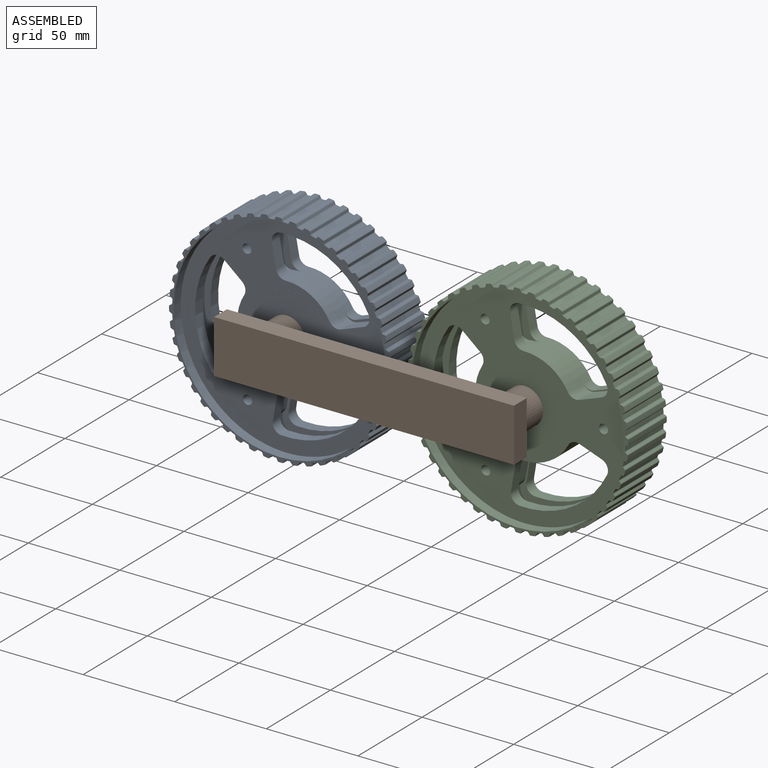
[diagram: assembled view]
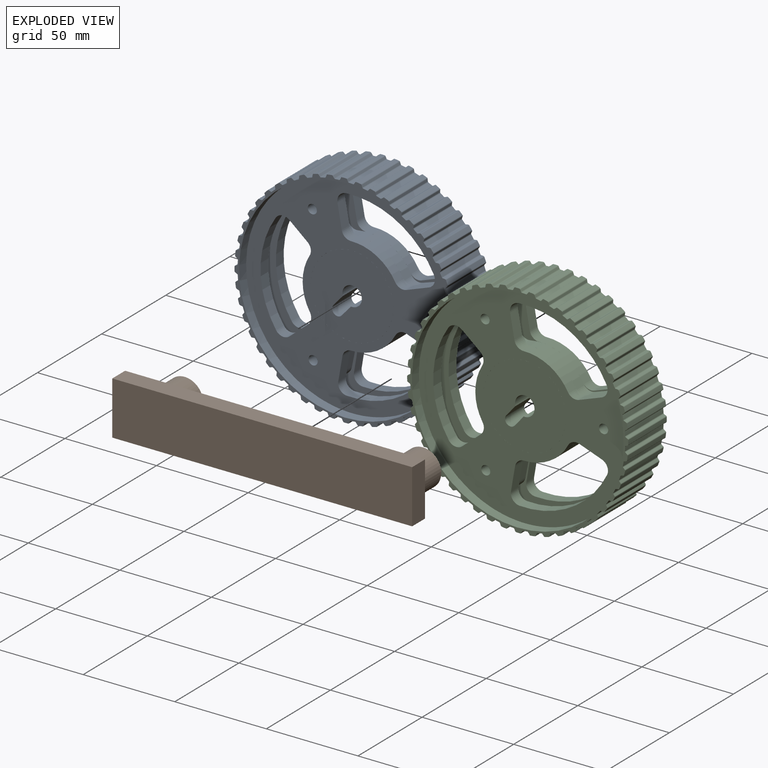
[diagram: exploded view]
GUIDED TOUR — MATED ASSEMBLY WITH SUBASSEMBLIES (Onshape document 6eb05f2303a7bf940cdb8cd1, AutoMate assembly 6eb05f2303a7bf940cdb8cd1_364548f8d74a8f267cea9362_1604241d3b773ca382b3986f_default)

This assembly has 9 component occurrences arranged in 3 top-level units: 1 individual components plus 2 subassemblies (S0, S1). The tour has two levels: first the top level, where each subassembly is treated as one rigid unit; then each subassembly is toured internally in its own section (nesting deeper than one subassembly level is flattened into its subassembly's section).

Components are labeled P0..P8 across the whole record; subassembly units are labeled S0..S1. A mate is a constraint between two units; its type names the relative motion it leaves free:
  FASTENED — locks the two components together rigidly (no relative motion),
  REVOLUTE — leaves rotation about the listed axis free (a hinge).
Axis/direction vectors are unit vectors and 'through' points are millimeter coordinates, both in the assembly's world frame.

TOP-LEVEL MATES (between units; each subassembly's internal mates are listed in its own section)
  1. REVOLUTE "Drehen 1": S0 <-> P1, axis (0.000, -1.000, 0.000) through (-51.69, 32.48, -22.25) mm
  2. REVOLUTE "Drehen 2": P1 <-> S1, axis (0.000, 1.000, 0.000) through (78.31, 32.48, -22.25) mm

TOP-LEVEL ASSEMBLY ORDER
  1. S1 — the base component [order verified]
  2. S0 [order verified]
  3. P1 [order verified]
Order-tag legend:
  [order verified] — this step's position reverses a verified removal order: the component was checked to insert without passing through the ones already placed.

Of the 9 component occurrences, 6 carry the full construction recipe — the FeatureScript program that regenerates the part's solid from scratch; the rest are supplied as boundary geometry only. Each toured unit is shown spotlighted twice — assembled, then exploded with a leader line back to its socket (green = recipe-attached component, orange = geometry-only, blue = subassembly unit; the rest desaturated gray).
NOTE — this tour is split across 2 documents so each fits a 32k-token context. This is document 1: the component sections continue in the remaining 1 document, each repeating the header above.
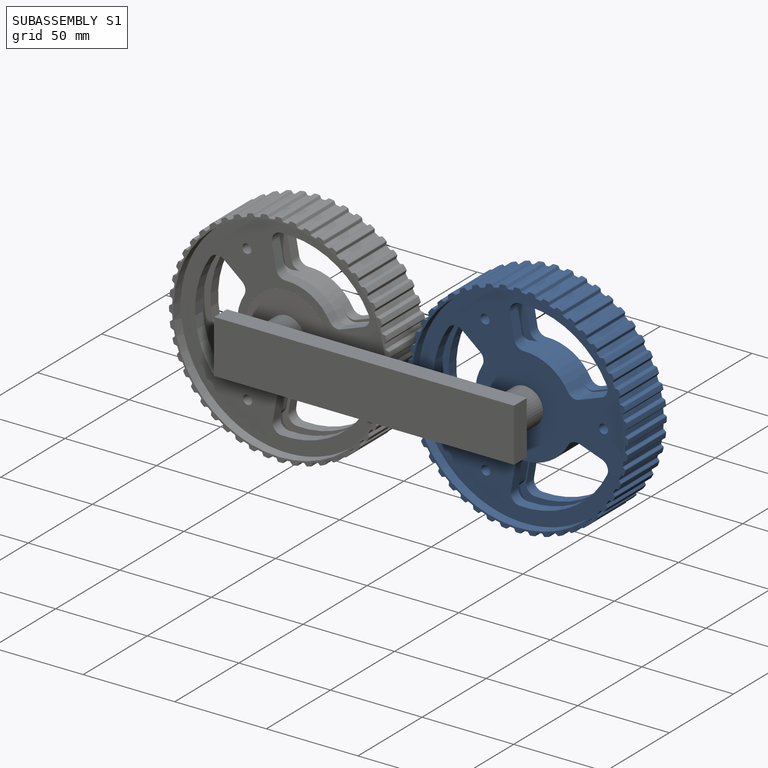
[diagram: subassembly S1 — assembled]
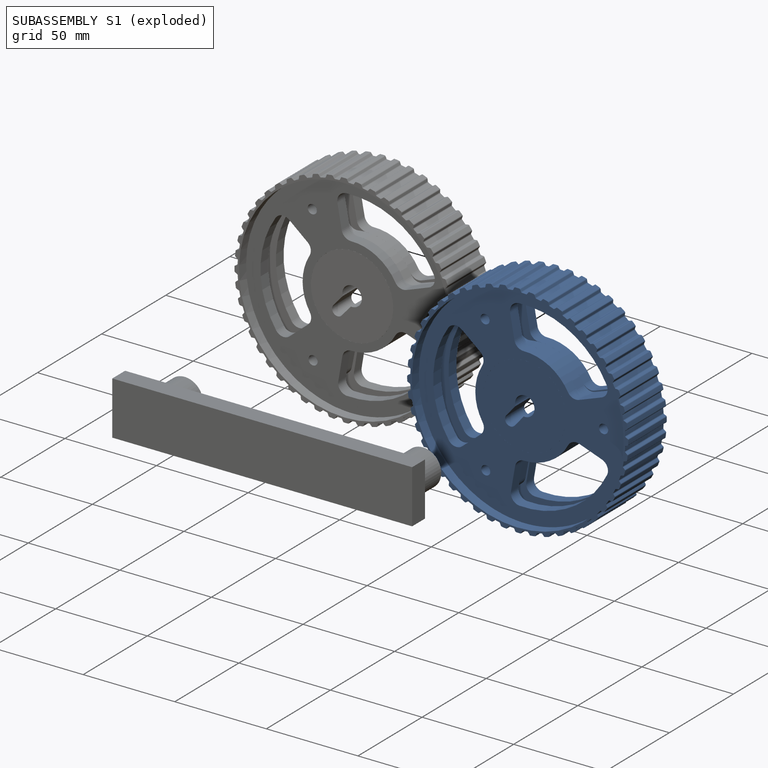
[diagram: subassembly S1 — exploded]
SUBASSEMBLY S1 — 4 components (P2, P3, P4, P5), of which 3 recipe-attached; toured below.
Held by: REVOLUTE mate "Drehen 2" to P1.
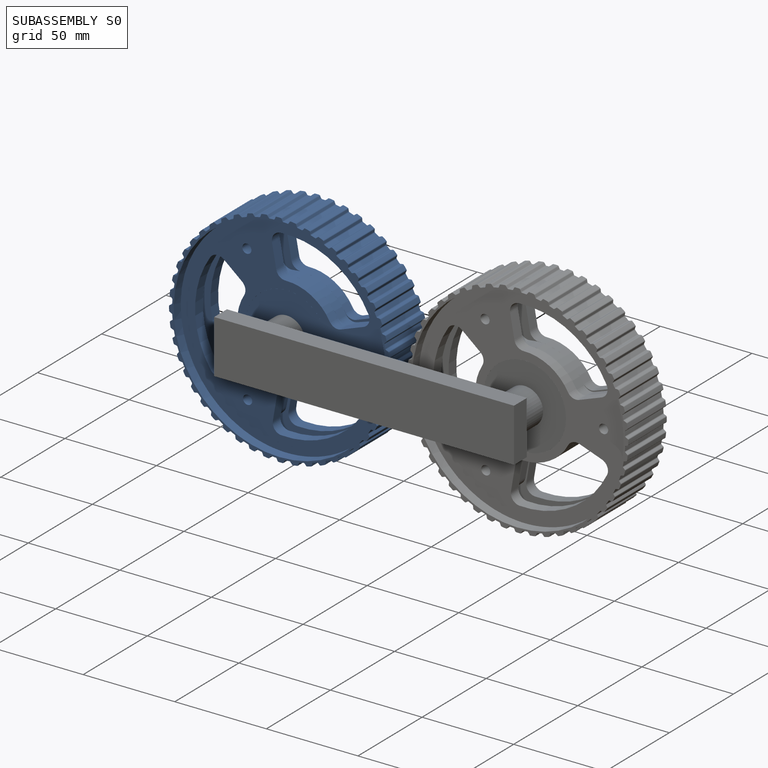
[diagram: subassembly S0 — assembled]
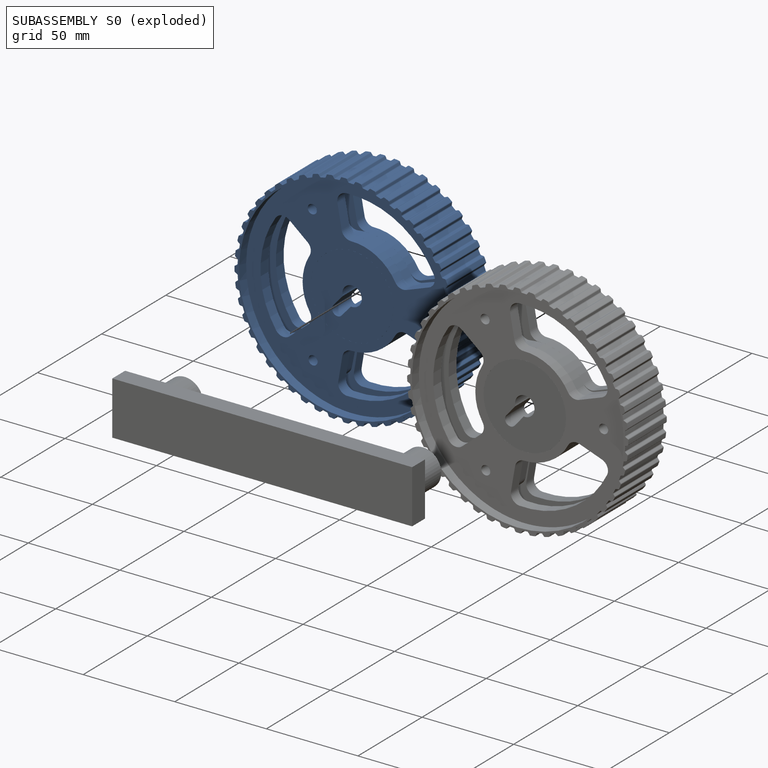
[diagram: subassembly S0 — exploded]
SUBASSEMBLY S0 — 4 components (P0, P6, P7, P8), of which 3 recipe-attached; toured below.
Held by: REVOLUTE mate "Drehen 1" to P1.
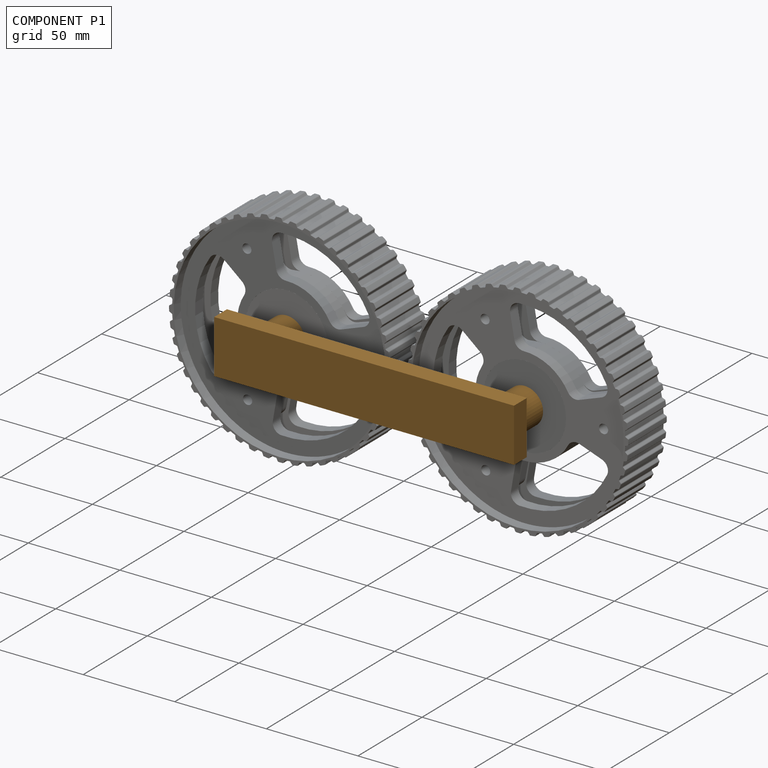
[diagram: component P1 — assembled]
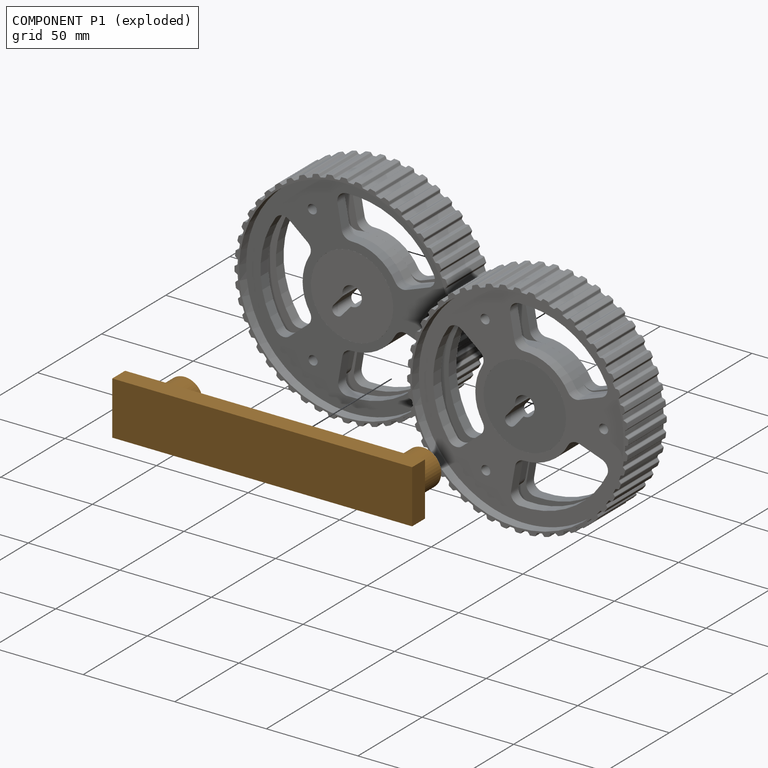
[diagram: component P1 — exploded]
COMPONENT P1 — geometry summary (no construction recipe available for this part):
  bounding box: 163.7 x 30.0 x 29.2 mm
  B-rep topology: 1 solid, 10 faces, 36 edges
  volume: 60337 mm^3 (42% of its bounding box)
Held by: REVOLUTE mate "Drehen 1" to P0; REVOLUTE mate "Drehen 2" to P2.
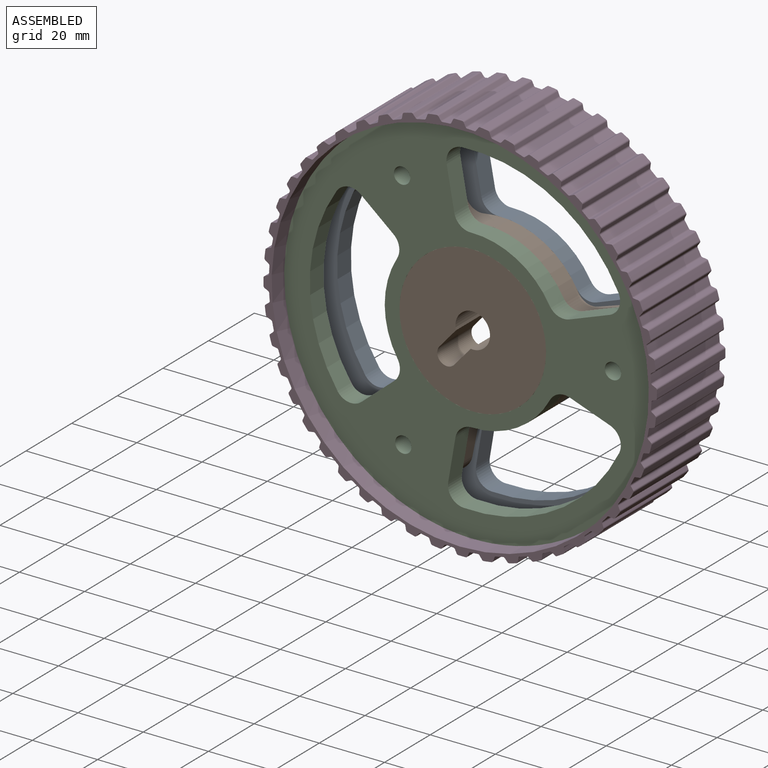
[diagram: subassembly S0 — assembled view]
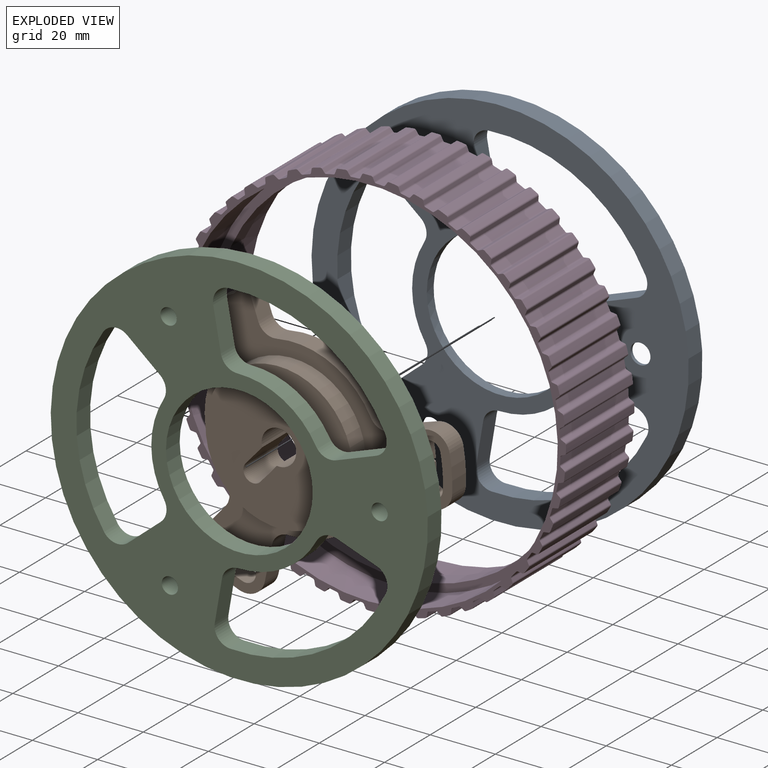
[diagram: subassembly S0 — exploded view]
SUBASSEMBLY S0 TOUR — 4 components, shown here in isolation at its own camera.

INTERNAL MATES
  1. FASTENED "Fest 1": P8 <-> P0, direction (0.000, 1.000, 0.000) through (-51.69, 44.48, -22.25) mm
  2. REVOLUTE "Drehen 2": P8 <-> P7, axis (0.000, -1.000, 0.000) through (-51.69, 38.48, -22.25) mm
  3. REVOLUTE "Drehen 1": P6 <-> P0, axis (0.000, 1.000, 0.000) through (-51.69, 44.48, -22.25) mm
  4. FASTENED "Fest 1": P8 <-> P0, direction (0.000, 1.000, 0.000) through (-51.69, 44.48, -22.25) mm
  5. REVOLUTE "Drehen 2": P8 <-> P7, axis (0.000, -1.000, 0.000) through (-51.69, 38.48, -22.25) mm
  6. REVOLUTE "Drehen 1": P6 <-> P0, axis (0.000, 1.000, 0.000) through (-51.69, 44.48, -22.25) mm

ASSEMBLY ORDER (within the subassembly)
  1. P0 — the base component [order heuristic]
  2. P6 [order heuristic]
  3. P8 [order heuristic]
  4. P7 [order heuristic]
Order-tag legend:
  [order heuristic] — this assembly is geometrically interlocked (no collision-free removal order exists), so components are listed in mate-graph order; insertion feasibility is not verified.
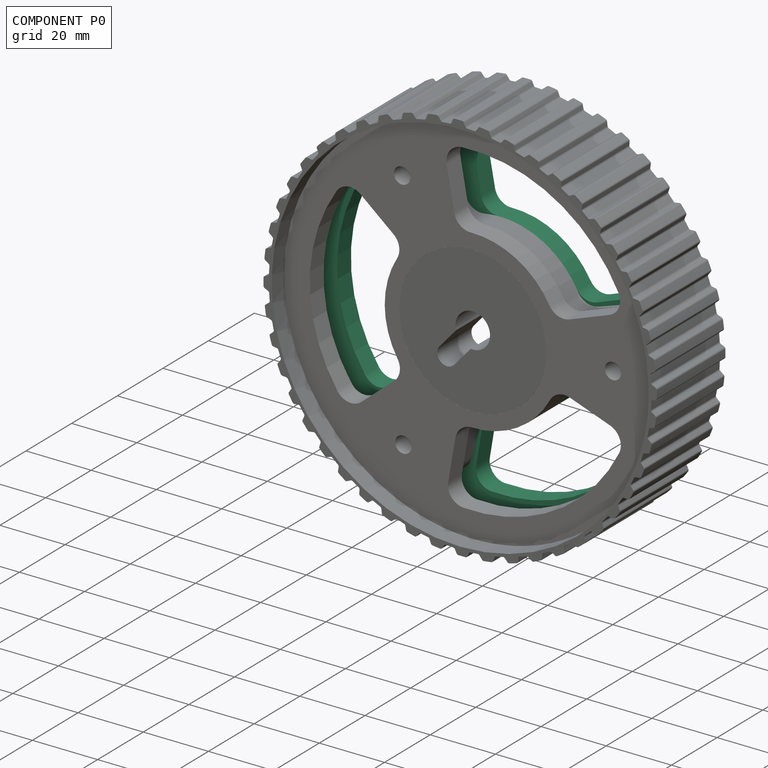
[diagram: component P0 — assembled]
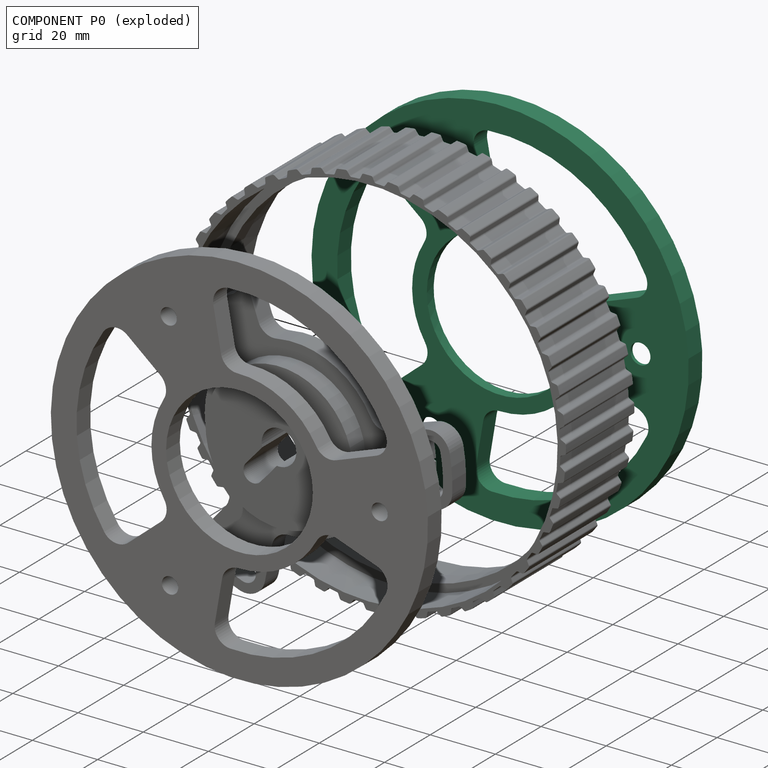
[diagram: component P0 — exploded]
COMPONENT P0 — recipe-attached (CADFS 00558431, mesh-verified: the recipe's output STEP matches this component's geometry to below the mesh-comparison resolution (tessellation chordal tolerance ~0.245 mm)).
Held by: FASTENED mate "Fest 1" to P8; REVOLUTE mate "Drehen 1" to P6; FASTENED mate "Fest 1" to P8; REVOLUTE mate "Drehen 1" to P6.
Construction recipe (FeatureScript — the CAD program that rebuilds this solid; sketch coordinates are in the units given by the * unit suffixes, e.g. mm):

FeatureScript 2543;
import(path : "onshape/std/geometry.fs", version : "2543.0");
import(path : "onshape/std/common.fs", version : "2543.0");
const mm = millimeter;
const VERTEX = EntityType.VERTEX;
const EDGE = EntityType.EDGE;
const FACE = EntityType.FACE;
const BODY = EntityType.BODY;
function v(x, y){return vector(x, y);}
function OD(order){return orderDisambiguation(order);}
function OSD(set){return originalSetDisambiguation(set);}
function TD(topology){return topologyDisambiguation(topology);}
function TDD(query){return trueDependencyDisambiguation(query);}
function sQuery(a, b, c) {return sketchEntityQuery(a, b, c);}

annotation { "Feature Type Name" : "Feature", "Feature Type Description" : "" }
export const myFeature = defineFeature(function(context is Context, id is Id, definition is map)
    precondition{}
    {
        {
            var Q0;
            Q0=qCreatedBy(makeId("Front.planeOp"),FACE);
            var sketch = newSketch(context, id + "F0", { "sketchPlane" : qUnion([Q0])});
            skCircle(sketch, "E0", {"center": v(0, 0) * mm, "radius": 57.85 * mm});
            skCircle(sketch, "E1", {"center": v(0, 0) * mm, "radius": 22.5 * mm});
            skArc(sketch, "E2", {"start": v(-25.2, 9.68) * mm, "mid": v(-27, 0) * mm, "end": v(-25.2, -9.68) * mm});
            skArc(sketch, "E3", {"start": v(-45.81, 20.03) * mm, "mid": v(-50, 0) * mm, "end": v(-45.81, -20.03) * mm});
            skPoint(sketch, "E4.visualSharp", {"position": v(-23.38, 13.5) * mm});
            skPoint(sketch, "E5.visualSharp", {"position": v(-43.3, 25) * mm});
            skPoint(sketch, "E6.visualSharp", {"position": v(-43.3, -25) * mm});
            skPoint(sketch, "E7.visualSharp", {"position": v(-23.38, -13.5) * mm});
            skPoint(sketch, "E8.MirrorP", {"position": v(23.38, -13.5) * mm});
            skPoint(sketch, "E9.MirrorP", {"position": v(0, -50) * mm});
            skPoint(sketch, "E10.MirrorP", {"position": v(0, -27) * mm});
            skArc(sketch, "E11.MirrorCS", {"start": v(20.99, -16.99) * mm, "mid": v(13.5, -23.38) * mm, "end": v(4.22, -26.67) * mm});
            skArc(sketch, "E12.MirrorCS", {"start": v(40.26, -29.66) * mm, "mid": v(25, -43.3) * mm, "end": v(5.56, -49.7) * mm});
            skArc(sketch, "E13.MirrorCS", {"start": v(4.22, 26.67) * mm, "mid": v(13.5, 23.38) * mm, "end": v(20.99, 16.99) * mm});
            skArc(sketch, "E14.MirrorCS", {"start": v(5.56, 49.7) * mm, "mid": v(25, 43.3) * mm, "end": v(40.26, 29.66) * mm});
            skPoint(sketch, "E15.MirrorP", {"position": v(0, 50) * mm});
            skPoint(sketch, "E16.MirrorP", {"position": v(43.3, 25) * mm});
            skCircle(sketch, "E17", {"center": v(43, 0) * mm, "radius": 3.1 * mm});
            skCircle(sketch, "E18.MirrorC", {"center": v(-21.5, 37.24) * mm, "radius": 3.1 * mm});
            skCircle(sketch, "E19.MirrorC", {"center": v(-21.5, -37.24) * mm, "radius": 3.1 * mm});
            skArc(sketch, "E20", {"start": v(20.99, 16.99) * mm, "mid": v(11.41, 24.47) * mm, "end": v(-0.48, 27) * mm});
            skArc(sketch, "E21", {"start": v(-45.81, 20.03) * mm, "mid": v(-49.92, -2.78) * mm, "end": v(-43.3, -25) * mm});
            skArc(sketch, "E22.trimOffspring", {"start": v(0, -50) * mm, "mid": v(22.55, -44.63) * mm, "end": v(40.26, -29.66) * mm});
            skArc(sketch, "E23.trimOffspring", {"start": v(40.26, 29.66) * mm, "mid": v(21.13, 45.32) * mm, "end": v(-3.16, 49.9) * mm});
            skLineSegment(sketch, "E24.trimOffspring", {"start": v(-10.05, 56.97) * mm, "end": v(-12, 68.06) * mm});
            skLineSegment(sketch, "E25.trimOffspring", {"start": v(-5.49, 31.13) * mm, "end": v(-7.77, 44.04) * mm});
            skLineSegment(sketch, "E26", {"start": v(-24.21, 20.32) * mm, "end": v(-34.26, 28.75) * mm});
            skArc(sketch, "E27", {"start": v(0, -27) * mm, "mid": v(13.5, -23.38) * mm, "end": v(23.38, -13.5) * mm});
            skArc(sketch, "E28.trimOffspring", {"start": v(40.26, 29.66) * mm, "mid": v(18.58, 46.42) * mm, "end": v(-8.68, 49.24) * mm});
            skArc(sketch, "E29.trimOffspring", {"start": v(-23.14, 13.91) * mm, "mid": v(-27, 0.24) * mm, "end": v(-23.38, -13.5) * mm});
            skArc(sketch, "E30.trimOffspring", {"start": v(-41.64, 27.68) * mm, "mid": v(-49.98, 1.58) * mm, "end": v(-43.3, -25) * mm});
            skArc(sketch, "E31.MirrorCS", {"start": v(-41.64, -27.68) * mm, "mid": v(-49.98, -1.58) * mm, "end": v(-43.3, 25) * mm});
            skArc(sketch, "E32.MirrorCS", {"start": v(-23.14, -13.91) * mm, "mid": v(-27, -0.24) * mm, "end": v(-23.38, 13.5) * mm});
            skLineSegment(sketch, "E33.MirrorCS", {"start": v(-24.21, -20.32) * mm, "end": v(-34.26, -28.75) * mm});
            skArc(sketch, "E34.MirrorCS", {"start": v(5.56, 49.7) * mm, "mid": v(28.68, 40.96) * mm, "end": v(44.8, 22.22) * mm});
            skLineSegment(sketch, "E35.MirrorCS", {"start": v(29.7, 10.81) * mm, "end": v(42.02, 15.3) * mm});
            skArc(sketch, "E36.MirrorCS", {"start": v(20.99, 16.99) * mm, "mid": v(13.5, 23.38) * mm, "end": v(4.22, 26.67) * mm});
            skArc(sketch, "E37.MirrorCS", {"start": v(4.22, 26.67) * mm, "mid": v(15.49, 22.12) * mm, "end": v(23.62, 13.09) * mm});
            skLineSegment(sketch, "E38", {"start": v(0, 0) * mm, "end": v(119.14, 0) * mm});
            skLineSegment(sketch, "E39.MirrorCS", {"start": v(29.7, -10.81) * mm, "end": v(42.02, -15.3) * mm});
            skArc(sketch, "E40.MirrorCS", {"start": v(4.22, -26.67) * mm, "mid": v(15.49, -22.12) * mm, "end": v(23.62, -13.09) * mm});
            skArc(sketch, "E41.MirrorCS", {"start": v(5.56, -49.7) * mm, "mid": v(28.68, -40.96) * mm, "end": v(44.8, -22.22) * mm});
            skLineSegment(sketch, "E42.MirrorCS", {"start": v(-5.49, -31.13) * mm, "end": v(-7.77, -44.04) * mm});
            skArc(sketch, "E43.MirrorCS", {"start": v(-3.16, -49.9) * mm, "mid": v(23.62, -44.07) * mm, "end": v(43.3, -25) * mm});
            skArc(sketch, "E44.MirrorCS", {"start": v(-0.48, -27) * mm, "mid": v(13.3, -23.5) * mm, "end": v(23.38, -13.5) * mm});
            skPoint(sketch, "E45.visualSharp", {"position": v(-38.3, -32.14) * mm});
            skArc(sketch, "E45.filletArc", {"start": v(-41.64, -27.68) * mm, "mid": v(-38.18, -29.87) * mm, "end": v(-34.26, -28.75) * mm});
            skPoint(sketch, "E46.visualSharp", {"position": v(-38.3, 32.14) * mm});
            skArc(sketch, "E46.filletArc", {"start": v(-34.26, 28.75) * mm, "mid": v(-38.18, 29.87) * mm, "end": v(-41.64, 27.68) * mm});
            skPoint(sketch, "E47.visualSharp", {"position": v(-20.68, 17.36) * mm});
            skArc(sketch, "E47.filletArc", {"start": v(-23.14, 13.91) * mm, "mid": v(-22.5, 17.31) * mm, "end": v(-24.21, 20.32) * mm});
            skPoint(sketch, "E48.visualSharp", {"position": v(-20.68, -17.36) * mm});
            skArc(sketch, "E48.filletArc", {"start": v(-24.21, -20.32) * mm, "mid": v(-22.5, -17.31) * mm, "end": v(-23.14, -13.91) * mm});
            skPoint(sketch, "E49.visualSharp", {"position": v(-4.69, -26.59) * mm});
            skArc(sketch, "E49.filletArc", {"start": v(-0.48, -27) * mm, "mid": v(-3.74, -28.14) * mm, "end": v(-5.49, -31.13) * mm});
            skPoint(sketch, "E50.visualSharp", {"position": v(-8.68, -49.24) * mm});
            skArc(sketch, "E50.filletArc", {"start": v(-7.77, -44.04) * mm, "mid": v(-6.77, -48) * mm, "end": v(-3.16, -49.9) * mm});
            skPoint(sketch, "E51.visualSharp", {"position": v(46.98, -17.1) * mm});
            skArc(sketch, "E51.filletArc", {"start": v(44.8, -22.22) * mm, "mid": v(44.96, -18.14) * mm, "end": v(42.02, -15.3) * mm});
            skPoint(sketch, "E52.visualSharp", {"position": v(25.37, -9.23) * mm});
            skArc(sketch, "E52.filletArc", {"start": v(29.7, -10.81) * mm, "mid": v(26.24, -10.83) * mm, "end": v(23.62, -13.09) * mm});
            skPoint(sketch, "E53.visualSharp", {"position": v(46.98, 17.1) * mm});
            skArc(sketch, "E53.filletArc", {"start": v(42.02, 15.3) * mm, "mid": v(44.96, 18.14) * mm, "end": v(44.8, 22.22) * mm});
            skPoint(sketch, "E54.visualSharp", {"position": v(25.37, 9.23) * mm});
            skArc(sketch, "E54.filletArc", {"start": v(23.62, 13.09) * mm, "mid": v(26.24, 10.83) * mm, "end": v(29.7, 10.81) * mm});
            skPoint(sketch, "E55.visualSharp", {"position": v(-4.69, 26.59) * mm});
            skArc(sketch, "E55.filletArc", {"start": v(-5.49, 31.13) * mm, "mid": v(-3.74, 28.14) * mm, "end": v(-0.48, 27) * mm});
            skPoint(sketch, "E56.visualSharp", {"position": v(-8.68, 49.24) * mm});
            skArc(sketch, "E56.filletArc", {"start": v(-3.16, 49.9) * mm, "mid": v(-6.77, 48) * mm, "end": v(-7.77, 44.04) * mm});
            skSolve(sketch);
        }
        {
            var Q0;
            Q0=makeQuery(id+"F0.imprint","IMPRINT",FACE,{"disambiguationData":[TD([[makeQuery(id+"F0.imprint","IMPRINT",EDGE,{"derivedFrom":sQuery(id+"F0.wireOp",EDGE,"E0")}),1.0]])]});
            extrude(context, id + "F1", {"entities" : qUnion([Q0]), "depth" : 6 * mm, "offsetDistance" : 25 * mm});
        }
        {
            var Q0;
            Q0=makeQuery(id+"F1.opExtrude","CAP_EDGE",EDGE,{"disambiguationData":[OSD([sQuery(id+"F0.wireOp",EDGE,"E1")])],"isStart":false});
            chamfer(context, id + "F2", {"entities" : qUnion([Q0]), "chamferType" : ChamferType.TWO_OFFSETS, "width1" : 3 * mm, "oppositeDirection" : false, "width2" : 3 * mm, "tangentPropagation" : true});
        }
        {
            var Q0;
            Q0=makeQuery(id+"F1.opExtrude","CAP_EDGE",EDGE,{"disambiguationData":[OSD([sQuery(id+"F0.wireOp",EDGE,"E18.MirrorC")])],"isStart":false});
            chamfer(context, id + "F3", {"entities" : qUnion([Q0]), "chamferType" : ChamferType.OFFSET_ANGLE, "width" : 5 * mm, "oppositeDirection" : false, "angle" : 45 * degree, "tangentPropagation" : true});
        }
        {
            var Q0;
            Q0=makeQuery(id+"F1.opExtrude","CAP_EDGE",EDGE,{"disambiguationData":[OSD([sQuery(id+"F0.wireOp",EDGE,"E19.MirrorC")])],"isStart":false});
            chamfer(context, id + "F4", {"entities" : qUnion([Q0]), "width" : 5 * mm, "tangentPropagation" : true});
        }
        {
            var Q0;
            Q0=makeQuery(id+"F1.opExtrude","CAP_EDGE",EDGE,{"disambiguationData":[OSD([sQuery(id+"F0.wireOp",EDGE,"E17")])],"isStart":false});
            chamfer(context, id + "F5", {"entities" : qUnion([Q0]), "chamferType" : ChamferType.OFFSET_ANGLE, "width" : 5 * mm, "oppositeDirection" : false, "angle" : 45 * degree, "tangentPropagation" : true});
        }
    });
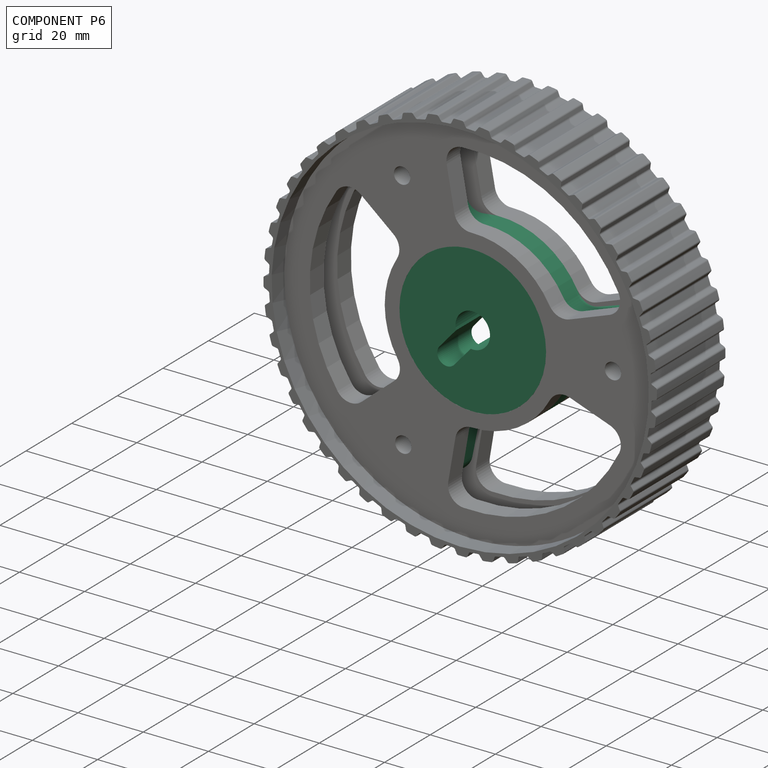
[diagram: component P6 — assembled]
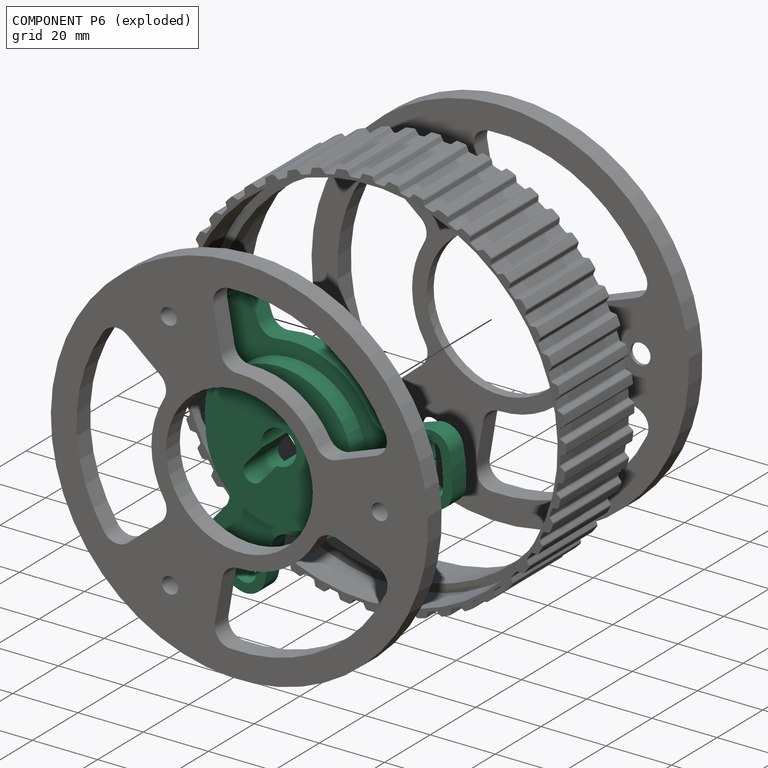
[diagram: component P6 — exploded]
COMPONENT P6 — recipe-attached (CADFS 00558435, mesh-verified: the recipe's output STEP matches this component's geometry to below the mesh-comparison resolution (tessellation chordal tolerance ~0.187 mm)).
Held by: REVOLUTE mate "Drehen 1" to P0; REVOLUTE mate "Drehen 1" to P0.
Construction recipe (FeatureScript — the CAD program that rebuilds this solid; sketch coordinates are in the units given by the * unit suffixes, e.g. mm):

FeatureScript 2543;
import(path : "onshape/std/geometry.fs", version : "2543.0");
import(path : "onshape/std/common.fs", version : "2543.0");
const mm = millimeter;
const VERTEX = EntityType.VERTEX;
const EDGE = EntityType.EDGE;
const FACE = EntityType.FACE;
const BODY = EntityType.BODY;
function v(x, y){return vector(x, y);}
function OD(order){return orderDisambiguation(order);}
function OSD(set){return originalSetDisambiguation(set);}
function TD(topology){return topologyDisambiguation(topology);}
function TDD(query){return trueDependencyDisambiguation(query);}
function sQuery(a, b, c) {return sketchEntityQuery(a, b, c);}

annotation { "Feature Type Name" : "Feature", "Feature Type Description" : "" }
export const myFeature = defineFeature(function(context is Context, id is Id, definition is map)
    precondition{}
    {
        {
            var Q0;
            Q0=qCreatedBy(makeId("Front.planeOp"),FACE);
            var sketch = newSketch(context, id + "F0", { "sketchPlane" : qUnion([Q0])});
            skArc(sketch, "E0", {"start": v(-24.5, 42.44) * mm, "mid": v(-29.15, 39.38) * mm, "end": v(-33.43, 35.82) * mm});
            skArc(sketch, "E1", {"start": v(4.4, 2.98) * mm, "mid": v(3.36, 4.11) * mm, "end": v(2.04, 4.9) * mm});
            skArc(sketch, "E2", {"start": v(-19.95, 34.55) * mm, "mid": v(-18.82, 38.79) * mm, "end": v(-23.05, 39.92) * mm});
            skLineSegment(sketch, "E3.MirrorCS", {"start": v(-3.1, -4.3) * mm, "end": v(-3.68, -4.52) * mm});
            skArc(sketch, "E4.trimOffspring", {"start": v(2.31, -4.78) * mm, "mid": v(3.47, -4.02) * mm, "end": v(4.4, -2.98) * mm});
            skLineSegment(sketch, "E5.MirrorCS", {"start": v(2.31, -4.78) * mm, "end": v(1.24, -12.01) * mm});
            skArc(sketch, "E6.MirrorCS", {"start": v(-3.6, -3.9) * mm, "mid": v(-5.3, -0.15) * mm, "end": v(-3.8, 3.7) * mm});
            skLineSegment(sketch, "E7.MirrorCS", {"start": v(-3.6, -3.9) * mm, "end": v(-4.66, -11.13) * mm});
            skArc(sketch, "E8.MirrorCS", {"start": v(-4.66, -11.13) * mm, "mid": v(-2.2, -14.84) * mm, "end": v(1.24, -12.01) * mm});
            skArc(sketch, "E9.MirrorCS", {"start": v(2.04, 4.9) * mm, "mid": v(5.3, 0.15) * mm, "end": v(2.31, -4.78) * mm});
            skArc(sketch, "E10.trimOffspring", {"start": v(-3.8, 3.7) * mm, "mid": v(-4.64, 2.6) * mm, "end": v(-5.15, 1.3) * mm});
            skArc(sketch, "E11", {"start": v(2.31, -4.78) * mm, "mid": v(0.46, 5.29) * mm, "end": v(-3.1, -4.3) * mm});
            skArc(sketch, "E12.MirrorC", {"start": v(-27.22, 29.17) * mm, "mid": v(-31.6, 29.32) * mm, "end": v(-31.45, 33.7) * mm});
            skArc(sketch, "E13", {"start": v(-19.95, 34.55) * mm, "mid": v(-23.74, 32.07) * mm, "end": v(-27.22, 29.17) * mm});
            skArc(sketch, "E14", {"start": v(-23.05, 39.92) * mm, "mid": v(-27.43, 37.05) * mm, "end": v(-31.45, 33.7) * mm});
            skArc(sketch, "E15", {"start": v(-23.39, 13.49) * mm, "mid": v(-26.83, -3.06) * mm, "end": v(-19.75, -18.41) * mm});
            skArc(sketch, "E16", {"start": v(-33.43, 35.82) * mm, "mid": v(-35.33, 31.23) * mm, "end": v(-33.1, 26.77) * mm});
            skArc(sketch, "E17", {"start": v(-27.5, 37.15) * mm, "mid": v(-27.5, 37.08) * mm, "end": v(-27.5, 37) * mm});
            skArc(sketch, "E18.trimOffspring", {"start": v(-24.07, 31.82) * mm, "mid": v(-23.71, 31.66) * mm, "end": v(-23.34, 31.53) * mm});
            skArc(sketch, "E19.trimOffspring", {"start": v(-27.36, 37.1) * mm, "mid": v(-27.43, 37.13) * mm, "end": v(-27.5, 37.15) * mm});
            skLineSegment(sketch, "E20", {"start": v(-21, 16.98) * mm, "end": v(-33.1, 26.77) * mm});
            skLineSegment(sketch, "E21", {"start": v(-33.1, 26.77) * mm, "end": v(-24.58, 19.87) * mm});
            skArc(sketch, "E22.trimOffspring", {"start": v(-23.34, 31.53) * mm, "mid": v(-23.36, 31.92) * mm, "end": v(-23.4, 32.32) * mm});
            skArc(sketch, "E23.trimOffspring", {"start": v(-15.94, 39.48) * mm, "mid": v(-19.55, 42.91) * mm, "end": v(-24.5, 42.44) * mm});
            skLineSegment(sketch, "E24.trimOffspring", {"start": v(-11.83, 29.3) * mm, "end": v(-15.94, 39.48) * mm});
            skLineSegment(sketch, "E25.trimOffspring", {"start": v(-27.43, 37.05) * mm, "end": v(-27.5, 37.15) * mm});
            skLineSegment(sketch, "E26.MirrorCS", {"start": v(-18.37, -42.28) * mm, "end": v(-18.42, -42.39) * mm});
            skArc(sketch, "E27.MirrorCS", {"start": v(-18.3, -42.31) * mm, "mid": v(-18.36, -42.35) * mm, "end": v(-18.42, -42.39) * mm});
            skArc(sketch, "E28.MirrorCS", {"start": v(-18.42, -42.39) * mm, "mid": v(-18.44, -42.32) * mm, "end": v(-18.45, -42.25) * mm});
            skArc(sketch, "E29.MirrorCS", {"start": v(-16.29, -36.42) * mm, "mid": v(-15.97, -36.19) * mm, "end": v(-15.63, -35.97) * mm});
            skArc(sketch, "E30.MirrorCS", {"start": v(-15.63, -35.97) * mm, "mid": v(-15.56, -36.36) * mm, "end": v(-15.52, -36.76) * mm});
            skArc(sketch, "E31.MirrorCS", {"start": v(-13.46, -44.1) * mm, "mid": v(-18.37, -42.28) * mm, "end": v(-23.05, -39.92) * mm});
            skArc(sketch, "E32.MirrorCS", {"start": v(-11.65, -38.16) * mm, "mid": v(-15.9, -36.6) * mm, "end": v(-19.95, -34.55) * mm});
            skArc(sketch, "E33.MirrorCS", {"start": v(-11.65, -38.16) * mm, "mid": v(-9.6, -42.03) * mm, "end": v(-13.46, -44.1) * mm});
            skArc(sketch, "E34.MirrorCS", {"start": v(-14.3, -46.86) * mm, "mid": v(-19.53, -44.94) * mm, "end": v(-24.5, -42.44) * mm});
            skArc(sketch, "E35.MirrorCS", {"start": v(-6.63, -42.06) * mm, "mid": v(-9.38, -46.21) * mm, "end": v(-14.3, -46.86) * mm});
            skLineSegment(sketch, "E36.MirrorCS", {"start": v(-26.23, -33.54) * mm, "end": v(-19.47, -24.9) * mm});
            skArc(sketch, "E37.MirrorCS", {"start": v(-24.5, -42.44) * mm, "mid": v(-27.39, -38.38) * mm, "end": v(-26.23, -33.54) * mm});
            skLineSegment(sketch, "E38.MirrorCS", {"start": v(-4.92, -31.22) * mm, "end": v(-6.63, -42.06) * mm});
            skArc(sketch, "E39.MirrorCS", {"start": v(-19.95, -34.55) * mm, "mid": v(-24.18, -35.69) * mm, "end": v(-23.05, -39.92) * mm});
            skArc(sketch, "E40.trimOffspring", {"start": v(0.01, -27) * mm, "mid": v(16.06, -21.7) * mm, "end": v(25.82, -7.9) * mm});
            skLineSegment(sketch, "E41.MirrorCS", {"start": v(45.8, 5.23) * mm, "end": v(45.92, 5.24) * mm});
            skArc(sketch, "E42.MirrorCS", {"start": v(45.8, 5.31) * mm, "mid": v(45.86, 5.28) * mm, "end": v(45.92, 5.24) * mm});
            skArc(sketch, "E43.MirrorCS", {"start": v(45.92, 5.24) * mm, "mid": v(45.87, 5.2) * mm, "end": v(45.81, 5.14) * mm});
            skArc(sketch, "E44.MirrorCS", {"start": v(38.97, 4.45) * mm, "mid": v(39.27, 4.7) * mm, "end": v(39.6, 4.94) * mm});
            skArc(sketch, "E45.MirrorCS", {"start": v(39.69, 4.1) * mm, "mid": v(39.32, 4.27) * mm, "end": v(38.97, 4.45) * mm});
            skArc(sketch, "E46.MirrorCS", {"start": v(38.87, 8.99) * mm, "mid": v(39.64, 4.52) * mm, "end": v(39.9, 0) * mm});
            skArc(sketch, "E47.MirrorCS", {"start": v(44.91, 10.39) * mm, "mid": v(45.8, 5.23) * mm, "end": v(46.1, 0) * mm});
            skArc(sketch, "E48.MirrorCS", {"start": v(49, 0) * mm, "mid": v(46.94, -4.53) * mm, "end": v(42.16, -5.94) * mm});
            skArc(sketch, "E49.MirrorCS", {"start": v(39.74, 15.29) * mm, "mid": v(44.7, 14.99) * mm, "end": v(47.74, 11.04) * mm});
            skArc(sketch, "E50.MirrorCS", {"start": v(39.9, 0) * mm, "mid": v(43, -3.1) * mm, "end": v(46.1, 0) * mm});
            skArc(sketch, "E51.MirrorCS", {"start": v(47.74, 11.04) * mm, "mid": v(48.68, 5.56) * mm, "end": v(49, 0) * mm});
            skArc(sketch, "E52.MirrorCS", {"start": v(38.87, 8.99) * mm, "mid": v(41.2, 12.7) * mm, "end": v(44.91, 10.39) * mm});
            skLineSegment(sketch, "E53.MirrorCS", {"start": v(29.5, 11.35) * mm, "end": v(39.74, 15.29) * mm});
            skLineSegment(sketch, "E54.MirrorCS", {"start": v(42.16, -5.94) * mm, "end": v(31.3, -4.41) * mm});
            skArc(sketch, "E55.trimOffspring", {"start": v(23.38, 13.51) * mm, "mid": v(10.76, 24.76) * mm, "end": v(-6.07, 26.3) * mm});
            skPoint(sketch, "E56.visualSharp", {"position": v(25.2, 9.7) * mm});
            skArc(sketch, "E56.filletArc", {"start": v(23.38, 13.51) * mm, "mid": v(26.04, 11.3) * mm, "end": v(29.5, 11.35) * mm});
            skPoint(sketch, "E57.visualSharp", {"position": v(-10.1, 25.04) * mm});
            skArc(sketch, "E57.filletArc", {"start": v(-11.83, 29.3) * mm, "mid": v(-9.5, 26.75) * mm, "end": v(-6.07, 26.3) * mm});
            skPoint(sketch, "E58.visualSharp", {"position": v(-21, 16.98) * mm});
            skArc(sketch, "E58.filletArc", {"start": v(-23.39, 13.49) * mm, "mid": v(-22.8, 16.9) * mm, "end": v(-24.58, 19.87) * mm});
            skPoint(sketch, "E59.visualSharp", {"position": v(-16.63, -21.27) * mm});
            skArc(sketch, "E59.filletArc", {"start": v(-19.47, -24.9) * mm, "mid": v(-18.41, -21.6) * mm, "end": v(-19.75, -18.41) * mm});
            skPoint(sketch, "E60.visualSharp", {"position": v(-4.2, -26.67) * mm});
            skArc(sketch, "E60.filletArc", {"start": v(0.01, -27) * mm, "mid": v(-3.23, -28.2) * mm, "end": v(-4.92, -31.22) * mm});
            skPoint(sketch, "E61.visualSharp", {"position": v(26.74, -3.77) * mm});
            skArc(sketch, "E61.filletArc", {"start": v(31.3, -4.41) * mm, "mid": v(27.91, -5.14) * mm, "end": v(25.82, -7.9) * mm});
            skSolve(sketch);
        }
        {
            var Q0;
            Q0=makeQuery(id+"F0.imprint","IMPRINT",FACE,{"disambiguationData":[TD([[makeQuery(id+"F0.imprint","IMPRINT",EDGE,{"derivedFrom":sQuery(id+"F0.wireOp",EDGE,"E0")}),1.0]])]});
            extrude(context, id + "F1", {"entities" : qUnion([Q0]), "flatOperationType" : FlatOperationType.REMOVE, "depth" : 6 * mm, "offsetDistance" : 25 * mm, "domain" : OperationDomain.MODEL});
        }
        {
            var Q0;
            Q0=makeQuery(id+"F1.opExtrude","CAP_FACE",FACE,{"disambiguationData":[OSD([sQuery(id+"F0.wireOp",EDGE,"E0"),sQuery(id+"F0.wireOp",EDGE,"E1"),sQuery(id+"F0.wireOp",EDGE,"E2"),sQuery(id+"F0.wireOp",EDGE,"E4.trimOffspring"),sQuery(id+"F0.wireOp",EDGE,"E5.MirrorCS"),sQuery(id+"F0.wireOp",EDGE,"E6.MirrorCS"),sQuery(id+"F0.wireOp",EDGE,"E7.MirrorCS"),sQuery(id+"F0.wireOp",EDGE,"E8.MirrorCS"),sQuery(id+"F0.wireOp",EDGE,"E9.MirrorCS"),sQuery(id+"F0.wireOp",EDGE,"E11"),sQuery(id+"F0.wireOp",EDGE,"E12.MirrorC"),sQuery(id+"F0.wireOp",EDGE,"E13"),sQuery(id+"F0.wireOp",EDGE,"E14"),sQuery(id+"F0.wireOp",EDGE,"E15"),sQuery(id+"F0.wireOp",EDGE,"E16"),sQuery(id+"F0.wireOp",EDGE,"E17"),sQuery(id+"F0.wireOp",EDGE,"E18.trimOffspring"),sQuery(id+"F0.wireOp",EDGE,"E19.trimOffspring"),sQuery(id+"F0.wireOp",EDGE,"E20"),sQuery(id+"F0.wireOp",EDGE,"E22.trimOffspring"),sQuery(id+"F0.wireOp",EDGE,"E23.trimOffspring"),sQuery(id+"F0.wireOp",EDGE,"E24.trimOffspring"),sQuery(id+"F0.wireOp",EDGE,"E27.MirrorCS"),sQuery(id+"F0.wireOp",EDGE,"E28.MirrorCS"),sQuery(id+"F0.wireOp",EDGE,"E29.MirrorCS"),sQuery(id+"F0.wireOp",EDGE,"E30.MirrorCS"),sQuery(id+"F0.wireOp",EDGE,"E31.MirrorCS"),sQuery(id+"F0.wireOp",EDGE,"E32.MirrorCS"),sQuery(id+"F0.wireOp",EDGE,"E33.MirrorCS"),sQuery(id+"F0.wireOp",EDGE,"E34.MirrorCS"),sQuery(id+"F0.wireOp",EDGE,"E35.MirrorCS"),sQuery(id+"F0.wireOp",EDGE,"E36.MirrorCS"),sQuery(id+"F0.wireOp",EDGE,"E37.MirrorCS"),sQuery(id+"F0.wireOp",EDGE,"E38.MirrorCS"),sQuery(id+"F0.wireOp",EDGE,"E39.MirrorCS"),sQuery(id+"F0.wireOp",EDGE,"E40.trimOffspring"),sQuery(id+"F0.wireOp",EDGE,"E42.MirrorCS"),sQuery(id+"F0.wireOp",EDGE,"E43.MirrorCS"),sQuery(id+"F0.wireOp",EDGE,"E44.MirrorCS"),sQuery(id+"F0.wireOp",EDGE,"E45.MirrorCS"),sQuery(id+"F0.wireOp",EDGE,"E46.MirrorCS"),sQuery(id+"F0.wireOp",EDGE,"E47.MirrorCS"),sQuery(id+"F0.wireOp",EDGE,"E48.MirrorCS"),sQuery(id+"F0.wireOp",EDGE,"E49.MirrorCS"),sQuery(id+"F0.wireOp",EDGE,"E50.MirrorCS"),sQuery(id+"F0.wireOp",EDGE,"E51.MirrorCS"),sQuery(id+"F0.wireOp",EDGE,"E52.MirrorCS"),sQuery(id+"F0.wireOp",EDGE,"E53.MirrorCS"),sQuery(id+"F0.wireOp",EDGE,"E54.MirrorCS"),sQuery(id+"F0.wireOp",EDGE,"E55.trimOffspring"),sQuery(id+"F0.wireOp",EDGE,"E56.filletArc"),sQuery(id+"F0.wireOp",EDGE,"E57.filletArc"),sQuery(id+"F0.wireOp",EDGE,"E58.filletArc"),sQuery(id+"F0.wireOp",EDGE,"E59.filletArc"),sQuery(id+"F0.wireOp",EDGE,"E60.filletArc"),sQuery(id+"F0.wireOp",EDGE,"E61.filletArc")])],"isStart":false});
            var sketch = newSketch(context, id + "F2", { "sketchPlane" : qUnion([Q0])});
            skCircle(sketch, "E62", {"center": v(0, 0) * mm, "radius": 22.5 * mm});
            skSolve(sketch);
        }
        {
            var Q0;
            Q0=makeQuery(id+"F2.imprint","IMPRINT",FACE,{"disambiguationData":[TD([[makeQuery(id+"F2.imprint","IMPRINT",EDGE,{"derivedFrom":sQuery(id+"F2.wireOp",EDGE,"E62")}),1.0]])]});
            extrude(context, id + "F3", {"entities" : qUnion([Q0]), "operationType" : NewBodyOperationType.ADD, "depth" : 3 * mm, "offsetDistance" : 25 * mm, "hasSecondDirection" : true, "secondDirectionOppositeDirection" : true, "secondDirectionDepth" : 12 * mm});
        }
    });
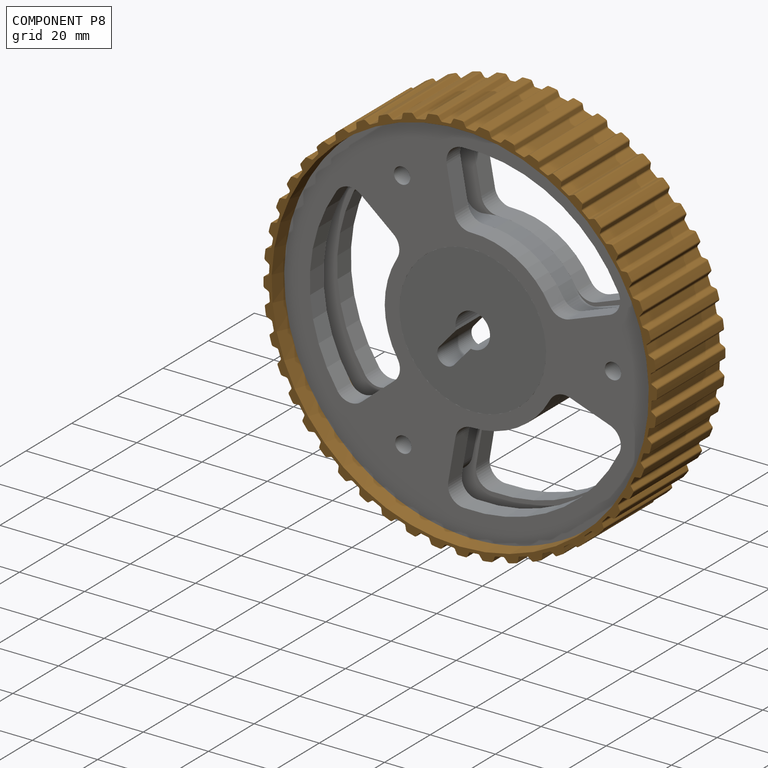
[diagram: component P8 — assembled]
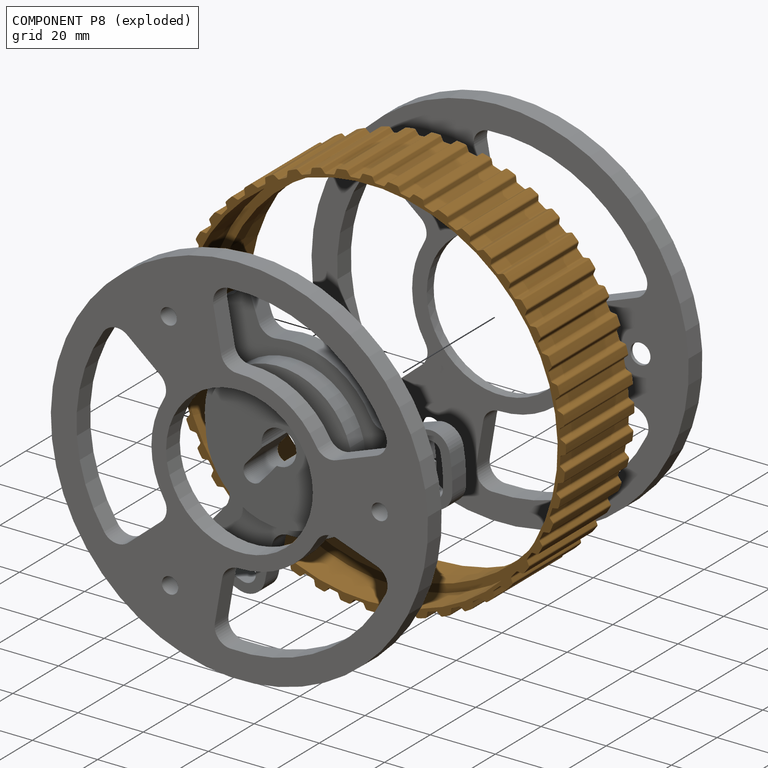
[diagram: component P8 — exploded]
COMPONENT P8 — geometry summary (no construction recipe available for this part):
  bounding box: 120.7 x 120.7 x 30.0 mm
  B-rep topology: 1 solid, 439 faces, 2614 edges
  volume: 23810 mm^3 (5% of its bounding box)
  symmetry: 6-fold rotationally symmetric about the y axis; mirror-symmetric across its x mid-plane, z mid-plane
Held by: FASTENED mate "Fest 1" to P0; REVOLUTE mate "Drehen 2" to P7; FASTENED mate "Fest 1" to P0; REVOLUTE mate "Drehen 2" to P7.
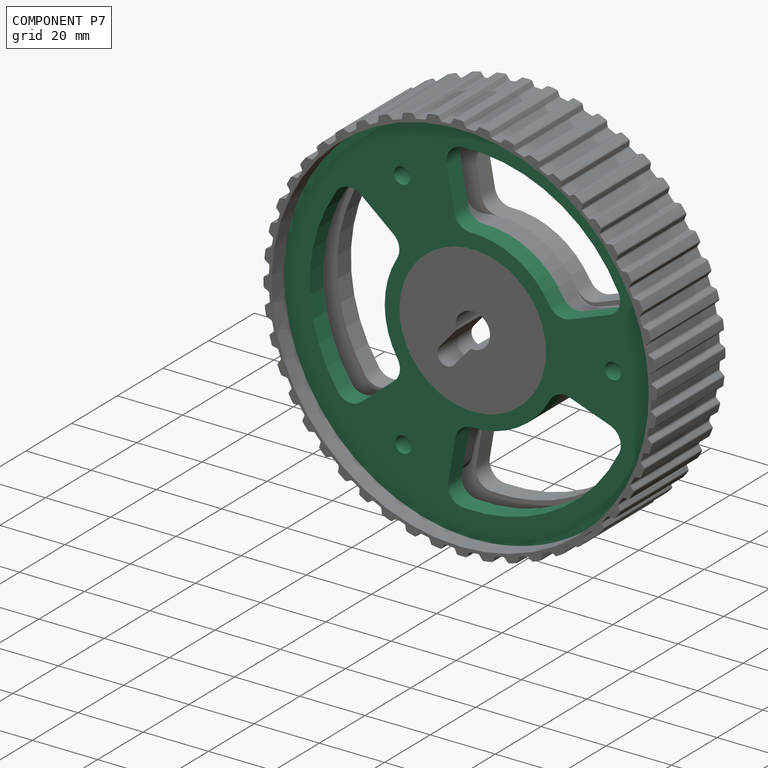
[diagram: component P7 — assembled]
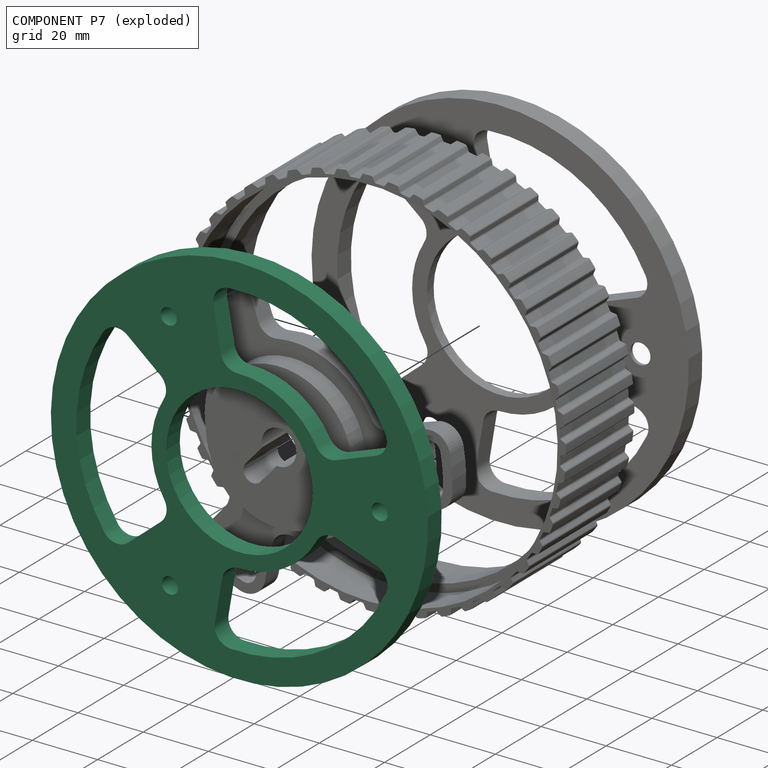
[diagram: component P7 — exploded]
COMPONENT P7 — recipe-attached (CADFS 00558432, mesh-verified: the recipe's output STEP matches this component's geometry to below the mesh-comparison resolution (tessellation chordal tolerance ~0.245 mm)).
Held by: REVOLUTE mate "Drehen 2" to P8; REVOLUTE mate "Drehen 2" to P8.
Construction recipe (FeatureScript — the CAD program that rebuilds this solid; sketch coordinates are in the units given by the * unit suffixes, e.g. mm):

FeatureScript 2543;
import(path : "onshape/std/geometry.fs", version : "2543.0");
import(path : "onshape/std/common.fs", version : "2543.0");
const mm = millimeter;
const VERTEX = EntityType.VERTEX;
const EDGE = EntityType.EDGE;
const FACE = EntityType.FACE;
const BODY = EntityType.BODY;
function v(x, y){return vector(x, y);}
function OD(order){return orderDisambiguation(order);}
function OSD(set){return originalSetDisambiguation(set);}
function TD(topology){return topologyDisambiguation(topology);}
function TDD(query){return trueDependencyDisambiguation(query);}
function sQuery(a, b, c) {return sketchEntityQuery(a, b, c);}

annotation { "Feature Type Name" : "Feature", "Feature Type Description" : "" }
export const myFeature = defineFeature(function(context is Context, id is Id, definition is map)
    precondition{}
    {
        {
            var Q0;
            Q0=qCreatedBy(makeId("Front.planeOp"),FACE);
            var sketch = newSketch(context, id + "F0", { "sketchPlane" : qUnion([Q0])});
            skCircle(sketch, "E0", {"center": v(0, 0) * mm, "radius": 57.85 * mm});
            skCircle(sketch, "E1", {"center": v(0, 0) * mm, "radius": 22.5 * mm});
            skArc(sketch, "E2", {"start": v(-25.2, 9.68) * mm, "mid": v(-27, 0) * mm, "end": v(-25.2, -9.68) * mm});
            skArc(sketch, "E3", {"start": v(-45.81, 20.03) * mm, "mid": v(-50, 0) * mm, "end": v(-45.81, -20.03) * mm});
            skPoint(sketch, "E4.visualSharp", {"position": v(-23.38, 13.5) * mm});
            skPoint(sketch, "E5.visualSharp", {"position": v(-43.3, 25) * mm});
            skPoint(sketch, "E6.visualSharp", {"position": v(-43.3, -25) * mm});
            skPoint(sketch, "E7.visualSharp", {"position": v(-23.38, -13.5) * mm});
            skPoint(sketch, "E8.MirrorP", {"position": v(23.38, -13.5) * mm});
            skPoint(sketch, "E9.MirrorP", {"position": v(0, -50) * mm});
            skPoint(sketch, "E10.MirrorP", {"position": v(0, -27) * mm});
            skArc(sketch, "E11.MirrorCS", {"start": v(20.99, -16.99) * mm, "mid": v(13.5, -23.38) * mm, "end": v(4.22, -26.67) * mm});
            skArc(sketch, "E12.MirrorCS", {"start": v(40.26, -29.66) * mm, "mid": v(25, -43.3) * mm, "end": v(5.56, -49.7) * mm});
            skArc(sketch, "E13.MirrorCS", {"start": v(4.22, 26.67) * mm, "mid": v(13.5, 23.38) * mm, "end": v(20.99, 16.99) * mm});
            skArc(sketch, "E14.MirrorCS", {"start": v(5.56, 49.7) * mm, "mid": v(25, 43.3) * mm, "end": v(40.26, 29.66) * mm});
            skPoint(sketch, "E15.MirrorP", {"position": v(0, 50) * mm});
            skPoint(sketch, "E16.MirrorP", {"position": v(43.3, 25) * mm});
            skCircle(sketch, "E17", {"center": v(43, 0) * mm, "radius": 2.5 * mm});
            skCircle(sketch, "E18.MirrorC", {"center": v(-21.5, 37.24) * mm, "radius": 2.5 * mm});
            skCircle(sketch, "E19.MirrorC", {"center": v(-21.5, -37.24) * mm, "radius": 2.5 * mm});
            skArc(sketch, "E20", {"start": v(20.99, 16.99) * mm, "mid": v(11.41, 24.47) * mm, "end": v(-0.48, 27) * mm});
            skArc(sketch, "E21", {"start": v(-45.81, 20.03) * mm, "mid": v(-49.92, -2.78) * mm, "end": v(-43.3, -25) * mm});
            skArc(sketch, "E22.trimOffspring", {"start": v(0, -50) * mm, "mid": v(22.55, -44.63) * mm, "end": v(40.26, -29.66) * mm});
            skArc(sketch, "E23.trimOffspring", {"start": v(40.26, 29.66) * mm, "mid": v(21.13, 45.32) * mm, "end": v(-3.16, 49.9) * mm});
            skLineSegment(sketch, "E24.trimOffspring", {"start": v(-10.05, 56.97) * mm, "end": v(-12, 68.06) * mm});
            skLineSegment(sketch, "E25.trimOffspring", {"start": v(-5.49, 31.13) * mm, "end": v(-7.77, 44.04) * mm});
            skLineSegment(sketch, "E26", {"start": v(-24.21, 20.32) * mm, "end": v(-34.26, 28.75) * mm});
            skArc(sketch, "E27", {"start": v(0, -27) * mm, "mid": v(13.5, -23.38) * mm, "end": v(23.38, -13.5) * mm});
            skArc(sketch, "E28.trimOffspring", {"start": v(40.26, 29.66) * mm, "mid": v(18.58, 46.42) * mm, "end": v(-8.68, 49.24) * mm});
            skArc(sketch, "E29.trimOffspring", {"start": v(-23.14, 13.91) * mm, "mid": v(-27, 0.24) * mm, "end": v(-23.38, -13.5) * mm});
            skArc(sketch, "E30.trimOffspring", {"start": v(-41.64, 27.68) * mm, "mid": v(-49.98, 1.58) * mm, "end": v(-43.3, -25) * mm});
            skArc(sketch, "E31.MirrorCS", {"start": v(-41.64, -27.68) * mm, "mid": v(-49.98, -1.58) * mm, "end": v(-43.3, 25) * mm});
            skArc(sketch, "E32.MirrorCS", {"start": v(-23.14, -13.91) * mm, "mid": v(-27, -0.24) * mm, "end": v(-23.38, 13.5) * mm});
            skLineSegment(sketch, "E33.MirrorCS", {"start": v(-24.21, -20.32) * mm, "end": v(-34.26, -28.75) * mm});
            skArc(sketch, "E34.MirrorCS", {"start": v(5.56, 49.7) * mm, "mid": v(28.68, 40.96) * mm, "end": v(44.8, 22.22) * mm});
            skLineSegment(sketch, "E35.MirrorCS", {"start": v(29.7, 10.81) * mm, "end": v(42.02, 15.3) * mm});
            skArc(sketch, "E36.MirrorCS", {"start": v(20.99, 16.99) * mm, "mid": v(13.5, 23.38) * mm, "end": v(4.22, 26.67) * mm});
            skArc(sketch, "E37.MirrorCS", {"start": v(4.22, 26.67) * mm, "mid": v(15.49, 22.12) * mm, "end": v(23.62, 13.09) * mm});
            skLineSegment(sketch, "E38", {"start": v(0, 0) * mm, "end": v(119.14, 0) * mm});
            skLineSegment(sketch, "E39.MirrorCS", {"start": v(29.7, -10.81) * mm, "end": v(42.02, -15.3) * mm});
            skArc(sketch, "E40.MirrorCS", {"start": v(4.22, -26.67) * mm, "mid": v(15.49, -22.12) * mm, "end": v(23.62, -13.09) * mm});
            skArc(sketch, "E41.MirrorCS", {"start": v(5.56, -49.7) * mm, "mid": v(28.68, -40.96) * mm, "end": v(44.8, -22.22) * mm});
            skLineSegment(sketch, "E42.MirrorCS", {"start": v(-5.49, -31.13) * mm, "end": v(-7.77, -44.04) * mm});
            skArc(sketch, "E43.MirrorCS", {"start": v(-3.16, -49.9) * mm, "mid": v(23.62, -44.07) * mm, "end": v(43.3, -25) * mm});
            skArc(sketch, "E44.MirrorCS", {"start": v(-0.48, -27) * mm, "mid": v(13.3, -23.5) * mm, "end": v(23.38, -13.5) * mm});
            skPoint(sketch, "E45.visualSharp", {"position": v(-38.3, -32.14) * mm});
            skArc(sketch, "E45.filletArc", {"start": v(-41.64, -27.68) * mm, "mid": v(-38.18, -29.87) * mm, "end": v(-34.26, -28.75) * mm});
            skPoint(sketch, "E46.visualSharp", {"position": v(-38.3, 32.14) * mm});
            skArc(sketch, "E46.filletArc", {"start": v(-34.26, 28.75) * mm, "mid": v(-38.18, 29.87) * mm, "end": v(-41.64, 27.68) * mm});
            skPoint(sketch, "E47.visualSharp", {"position": v(-20.68, 17.36) * mm});
            skArc(sketch, "E47.filletArc", {"start": v(-23.14, 13.91) * mm, "mid": v(-22.5, 17.31) * mm, "end": v(-24.21, 20.32) * mm});
            skPoint(sketch, "E48.visualSharp", {"position": v(-20.68, -17.36) * mm});
            skArc(sketch, "E48.filletArc", {"start": v(-24.21, -20.32) * mm, "mid": v(-22.5, -17.31) * mm, "end": v(-23.14, -13.91) * mm});
            skPoint(sketch, "E49.visualSharp", {"position": v(-4.69, -26.59) * mm});
            skArc(sketch, "E49.filletArc", {"start": v(-0.48, -27) * mm, "mid": v(-3.74, -28.14) * mm, "end": v(-5.49, -31.13) * mm});
            skPoint(sketch, "E50.visualSharp", {"position": v(-8.68, -49.24) * mm});
            skArc(sketch, "E50.filletArc", {"start": v(-7.77, -44.04) * mm, "mid": v(-6.77, -48) * mm, "end": v(-3.16, -49.9) * mm});
            skPoint(sketch, "E51.visualSharp", {"position": v(46.98, -17.1) * mm});
            skArc(sketch, "E51.filletArc", {"start": v(44.8, -22.22) * mm, "mid": v(44.96, -18.14) * mm, "end": v(42.02, -15.3) * mm});
            skPoint(sketch, "E52.visualSharp", {"position": v(25.37, -9.23) * mm});
            skArc(sketch, "E52.filletArc", {"start": v(29.7, -10.81) * mm, "mid": v(26.24, -10.83) * mm, "end": v(23.62, -13.09) * mm});
            skPoint(sketch, "E53.visualSharp", {"position": v(46.98, 17.1) * mm});
            skArc(sketch, "E53.filletArc", {"start": v(42.02, 15.3) * mm, "mid": v(44.96, 18.14) * mm, "end": v(44.8, 22.22) * mm});
            skPoint(sketch, "E54.visualSharp", {"position": v(25.37, 9.23) * mm});
            skArc(sketch, "E54.filletArc", {"start": v(23.62, 13.09) * mm, "mid": v(26.24, 10.83) * mm, "end": v(29.7, 10.81) * mm});
            skPoint(sketch, "E55.visualSharp", {"position": v(-4.69, 26.59) * mm});
            skArc(sketch, "E55.filletArc", {"start": v(-5.49, 31.13) * mm, "mid": v(-3.74, 28.14) * mm, "end": v(-0.48, 27) * mm});
            skPoint(sketch, "E56.visualSharp", {"position": v(-8.68, 49.24) * mm});
            skArc(sketch, "E56.filletArc", {"start": v(-3.16, 49.9) * mm, "mid": v(-6.77, 48) * mm, "end": v(-7.77, 44.04) * mm});
            skSolve(sketch);
        }
        {
            var Q0;
            Q0=makeQuery(id+"F0.imprint","IMPRINT",FACE,{"disambiguationData":[TD([[makeQuery(id+"F0.imprint","IMPRINT",EDGE,{"derivedFrom":sQuery(id+"F0.wireOp",EDGE,"E0")}),1.0]])]});
            extrude(context, id + "F1", {"entities" : qUnion([Q0]), "depth" : 6 * mm, "offsetDistance" : 25 * mm});
        }
    });
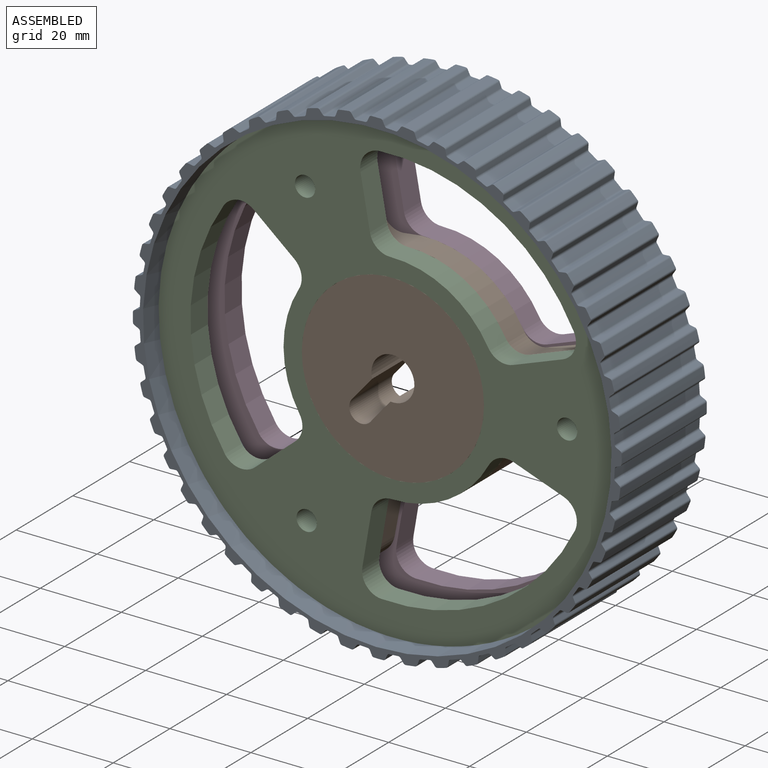
[diagram: subassembly S1 — assembled view]
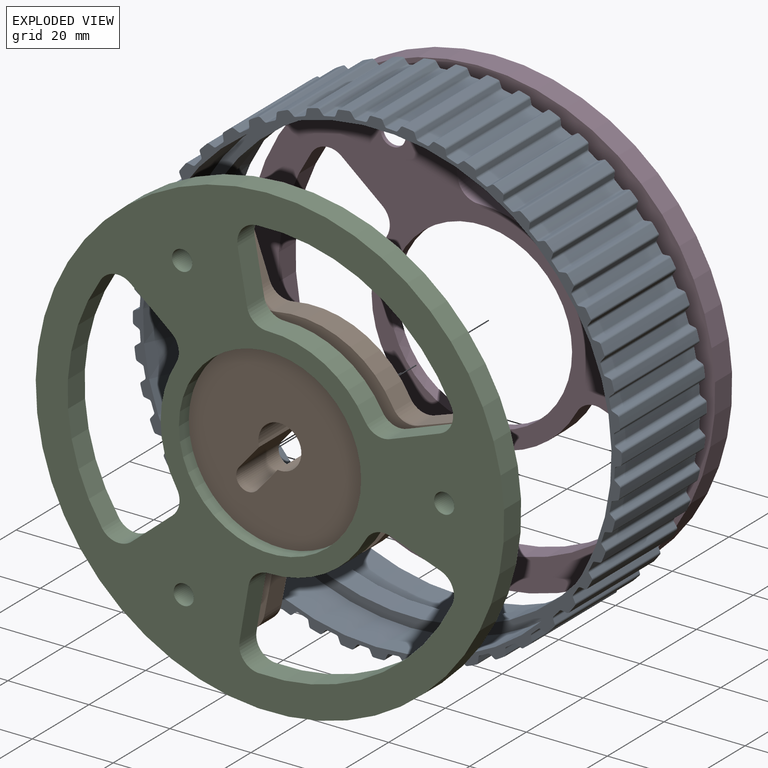
[diagram: subassembly S1 — exploded view]
SUBASSEMBLY S1 TOUR — 4 components, shown here in isolation at its own camera.

INTERNAL MATES
  1. FASTENED "Fest 1": P2 <-> P5, direction (0.000, 1.000, 0.000) through (78.31, 44.48, -22.25) mm
  2. REVOLUTE "Drehen 2": P2 <-> P4, axis (0.000, -1.000, 0.000) through (78.31, 38.48, -22.25) mm
  3. REVOLUTE "Drehen 1": P3 <-> P5, axis (0.000, 1.000, 0.000) through (78.31, 44.48, -22.25) mm
  4. REVOLUTE "Drehen 2": P2 <-> P4, axis (0.000, -1.000, 0.000) through (78.31, 38.48, -22.25) mm
  5. REVOLUTE "Drehen 1": P3 <-> P5, axis (0.000, 1.000, 0.000) through (78.31, 44.48, -22.25) mm
  6. FASTENED "Fest 1": P2 <-> P5, direction (0.000, 1.000, 0.000) through (78.31, 44.48, -22.25) mm

ASSEMBLY ORDER (within the subassembly)
  1. P2 — the base component [order heuristic]
  2. P4 [order heuristic]
  3. P5 [order heuristic]
  4. P3 [order heuristic]
Order-tag legend:
  [order heuristic] — this assembly is geometrically interlocked (no collision-free removal order exists), so components are listed in mate-graph order; insertion feasibility is not verified.
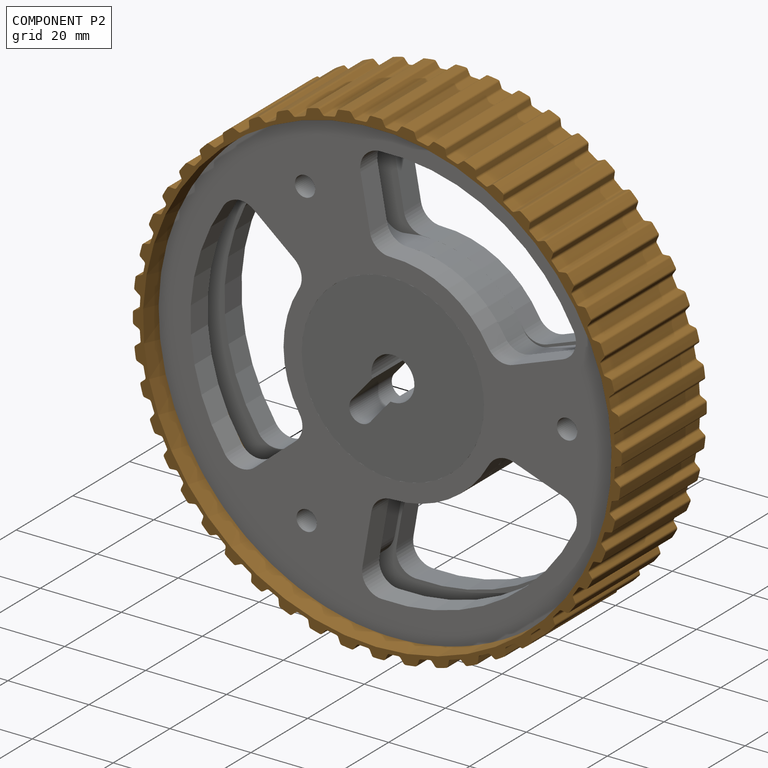
[diagram: component P2 — assembled]
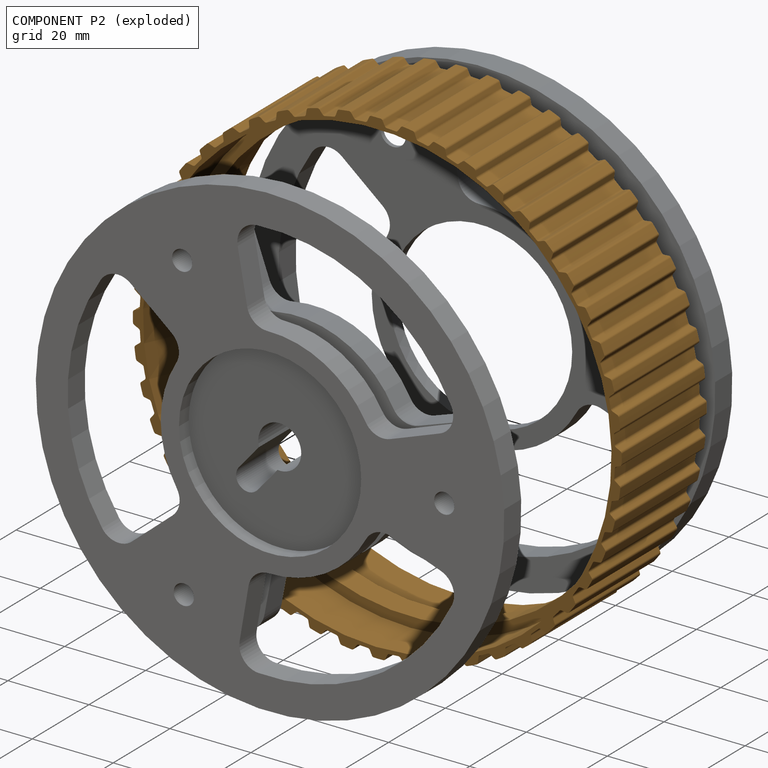
[diagram: component P2 — exploded]
COMPONENT P2 — geometry summary (no construction recipe available for this part):
  bounding box: 120.7 x 120.7 x 30.0 mm
  B-rep topology: 1 solid, 439 faces, 2614 edges
  volume: 23810 mm^3 (5% of its bounding box)
  symmetry: 6-fold rotationally symmetric about the y axis; mirror-symmetric across its x mid-plane, z mid-plane
Held by: FASTENED mate "Fest 1" to P5; REVOLUTE mate "Drehen 2" to P4; REVOLUTE mate "Drehen 2" to P4; FASTENED mate "Fest 1" to P5.
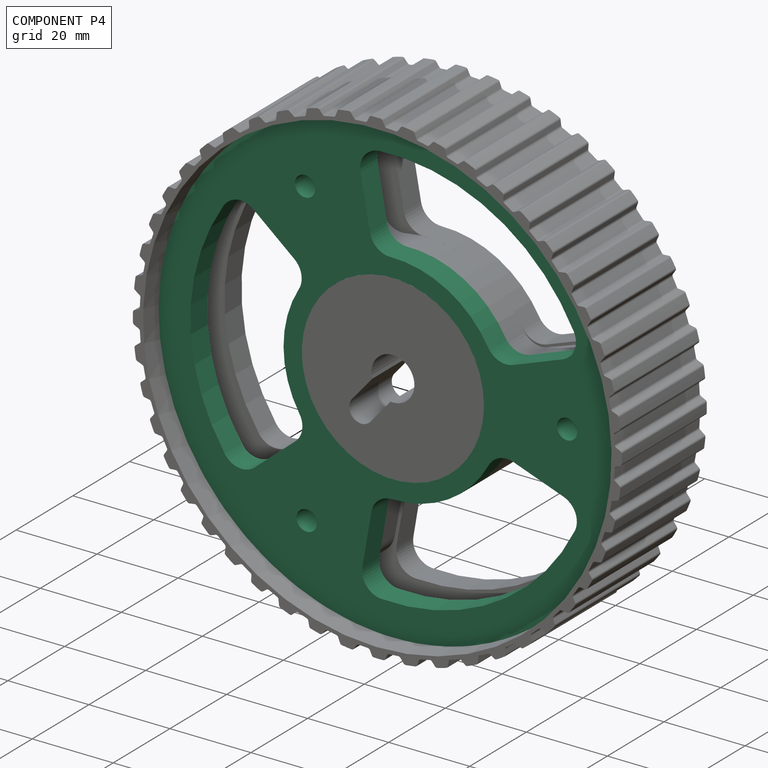
[diagram: component P4 — assembled]
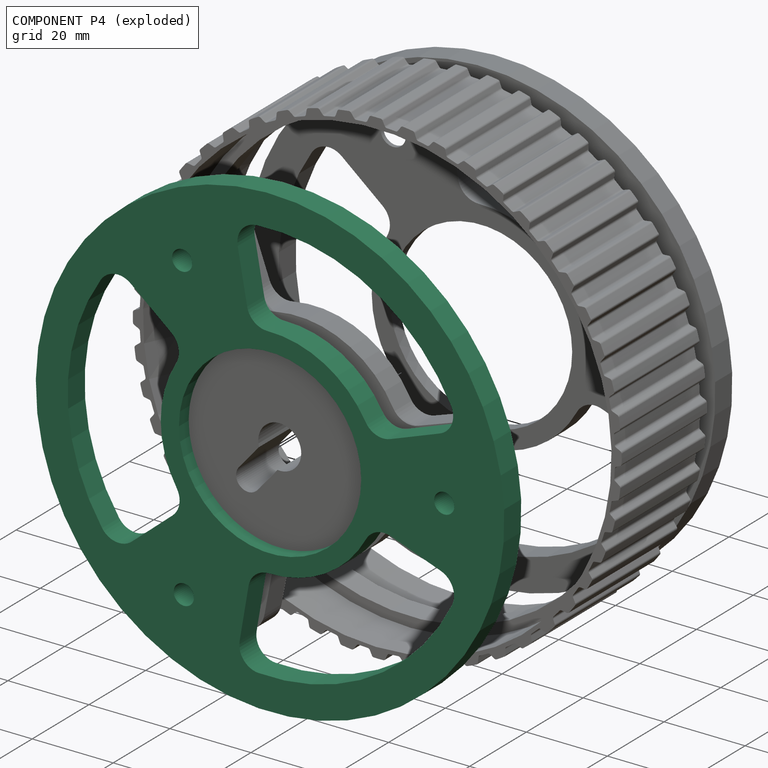
[diagram: component P4 — exploded]
COMPONENT P4 — recipe-attached (CADFS 00558432, mesh-verified: the recipe's output STEP matches this component's geometry to below the mesh-comparison resolution (tessellation chordal tolerance ~0.245 mm)).
Held by: REVOLUTE mate "Drehen 2" to P2; REVOLUTE mate "Drehen 2" to P2.
Construction recipe (FeatureScript — the CAD program that rebuilds this solid; sketch coordinates are in the units given by the * unit suffixes, e.g. mm):

FeatureScript 2543;
import(path : "onshape/std/geometry.fs", version : "2543.0");
import(path : "onshape/std/common.fs", version : "2543.0");
const mm = millimeter;
const VERTEX = EntityType.VERTEX;
const EDGE = EntityType.EDGE;
const FACE = EntityType.FACE;
const BODY = EntityType.BODY;
function v(x, y){return vector(x, y);}
function OD(order){return orderDisambiguation(order);}
function OSD(set){return originalSetDisambiguation(set);}
function TD(topology){return topologyDisambiguation(topology);}
function TDD(query){return trueDependencyDisambiguation(query);}
function sQuery(a, b, c) {return sketchEntityQuery(a, b, c);}

annotation { "Feature Type Name" : "Feature", "Feature Type Description" : "" }
export const myFeature = defineFeature(function(context is Context, id is Id, definition is map)
    precondition{}
    {
        {
            var Q0;
            Q0=qCreatedBy(makeId("Front.planeOp"),FACE);
            var sketch = newSketch(context, id + "F0", { "sketchPlane" : qUnion([Q0])});
            skCircle(sketch, "E0", {"center": v(0, 0) * mm, "radius": 57.85 * mm});
            skCircle(sketch, "E1", {"center": v(0, 0) * mm, "radius": 22.5 * mm});
            skArc(sketch, "E2", {"start": v(-25.2, 9.68) * mm, "mid": v(-27, 0) * mm, "end": v(-25.2, -9.68) * mm});
            skArc(sketch, "E3", {"start": v(-45.81, 20.03) * mm, "mid": v(-50, 0) * mm, "end": v(-45.81, -20.03) * mm});
            skPoint(sketch, "E4.visualSharp", {"position": v(-23.38, 13.5) * mm});
            skPoint(sketch, "E5.visualSharp", {"position": v(-43.3, 25) * mm});
            skPoint(sketch, "E6.visualSharp", {"position": v(-43.3, -25) * mm});
            skPoint(sketch, "E7.visualSharp", {"position": v(-23.38, -13.5) * mm});
            skPoint(sketch, "E8.MirrorP", {"position": v(23.38, -13.5) * mm});
            skPoint(sketch, "E9.MirrorP", {"position": v(0, -50) * mm});
            skPoint(sketch, "E10.MirrorP", {"position": v(0, -27) * mm});
            skArc(sketch, "E11.MirrorCS", {"start": v(20.99, -16.99) * mm, "mid": v(13.5, -23.38) * mm, "end": v(4.22, -26.67) * mm});
            skArc(sketch, "E12.MirrorCS", {"start": v(40.26, -29.66) * mm, "mid": v(25, -43.3) * mm, "end": v(5.56, -49.7) * mm});
            skArc(sketch, "E13.MirrorCS", {"start": v(4.22, 26.67) * mm, "mid": v(13.5, 23.38) * mm, "end": v(20.99, 16.99) * mm});
            skArc(sketch, "E14.MirrorCS", {"start": v(5.56, 49.7) * mm, "mid": v(25, 43.3) * mm, "end": v(40.26, 29.66) * mm});
            skPoint(sketch, "E15.MirrorP", {"position": v(0, 50) * mm});
            skPoint(sketch, "E16.MirrorP", {"position": v(43.3, 25) * mm});
            skCircle(sketch, "E17", {"center": v(43, 0) * mm, "radius": 2.5 * mm});
            skCircle(sketch, "E18.MirrorC", {"center": v(-21.5, 37.24) * mm, "radius": 2.5 * mm});
            skCircle(sketch, "E19.MirrorC", {"center": v(-21.5, -37.24) * mm, "radius": 2.5 * mm});
            skArc(sketch, "E20", {"start": v(20.99, 16.99) * mm, "mid": v(11.41, 24.47) * mm, "end": v(-0.48, 27) * mm});
            skArc(sketch, "E21", {"start": v(-45.81, 20.03) * mm, "mid": v(-49.92, -2.78) * mm, "end": v(-43.3, -25) * mm});
            skArc(sketch, "E22.trimOffspring", {"start": v(0, -50) * mm, "mid": v(22.55, -44.63) * mm, "end": v(40.26, -29.66) * mm});
            skArc(sketch, "E23.trimOffspring", {"start": v(40.26, 29.66) * mm, "mid": v(21.13, 45.32) * mm, "end": v(-3.16, 49.9) * mm});
            skLineSegment(sketch, "E24.trimOffspring", {"start": v(-10.05, 56.97) * mm, "end": v(-12, 68.06) * mm});
            skLineSegment(sketch, "E25.trimOffspring", {"start": v(-5.49, 31.13) * mm, "end": v(-7.77, 44.04) * mm});
            skLineSegment(sketch, "E26", {"start": v(-24.21, 20.32) * mm, "end": v(-34.26, 28.75) * mm});
            skArc(sketch, "E27", {"start": v(0, -27) * mm, "mid": v(13.5, -23.38) * mm, "end": v(23.38, -13.5) * mm});
            skArc(sketch, "E28.trimOffspring", {"start": v(40.26, 29.66) * mm, "mid": v(18.58, 46.42) * mm, "end": v(-8.68, 49.24) * mm});
            skArc(sketch, "E29.trimOffspring", {"start": v(-23.14, 13.91) * mm, "mid": v(-27, 0.24) * mm, "end": v(-23.38, -13.5) * mm});
            skArc(sketch, "E30.trimOffspring", {"start": v(-41.64, 27.68) * mm, "mid": v(-49.98, 1.58) * mm, "end": v(-43.3, -25) * mm});
            skArc(sketch, "E31.MirrorCS", {"start": v(-41.64, -27.68) * mm, "mid": v(-49.98, -1.58) * mm, "end": v(-43.3, 25) * mm});
            skArc(sketch, "E32.MirrorCS", {"start": v(-23.14, -13.91) * mm, "mid": v(-27, -0.24) * mm, "end": v(-23.38, 13.5) * mm});
            skLineSegment(sketch, "E33.MirrorCS", {"start": v(-24.21, -20.32) * mm, "end": v(-34.26, -28.75) * mm});
            skArc(sketch, "E34.MirrorCS", {"start": v(5.56, 49.7) * mm, "mid": v(28.68, 40.96) * mm, "end": v(44.8, 22.22) * mm});
            skLineSegment(sketch, "E35.MirrorCS", {"start": v(29.7, 10.81) * mm, "end": v(42.02, 15.3) * mm});
            skArc(sketch, "E36.MirrorCS", {"start": v(20.99, 16.99) * mm, "mid": v(13.5, 23.38) * mm, "end": v(4.22, 26.67) * mm});
            skArc(sketch, "E37.MirrorCS", {"start": v(4.22, 26.67) * mm, "mid": v(15.49, 22.12) * mm, "end": v(23.62, 13.09) * mm});
            skLineSegment(sketch, "E38", {"start": v(0, 0) * mm, "end": v(119.14, 0) * mm});
            skLineSegment(sketch, "E39.MirrorCS", {"start": v(29.7, -10.81) * mm, "end": v(42.02, -15.3) * mm});
            skArc(sketch, "E40.MirrorCS", {"start": v(4.22, -26.67) * mm, "mid": v(15.49, -22.12) * mm, "end": v(23.62, -13.09) * mm});
            skArc(sketch, "E41.MirrorCS", {"start": v(5.56, -49.7) * mm, "mid": v(28.68, -40.96) * mm, "end": v(44.8, -22.22) * mm});
            skLineSegment(sketch, "E42.MirrorCS", {"start": v(-5.49, -31.13) * mm, "end": v(-7.77, -44.04) * mm});
            skArc(sketch, "E43.MirrorCS", {"start": v(-3.16, -49.9) * mm, "mid": v(23.62, -44.07) * mm, "end": v(43.3, -25) * mm});
            skArc(sketch, "E44.MirrorCS", {"start": v(-0.48, -27) * mm, "mid": v(13.3, -23.5) * mm, "end": v(23.38, -13.5) * mm});
            skPoint(sketch, "E45.visualSharp", {"position": v(-38.3, -32.14) * mm});
            skArc(sketch, "E45.filletArc", {"start": v(-41.64, -27.68) * mm, "mid": v(-38.18, -29.87) * mm, "end": v(-34.26, -28.75) * mm});
            skPoint(sketch, "E46.visualSharp", {"position": v(-38.3, 32.14) * mm});
            skArc(sketch, "E46.filletArc", {"start": v(-34.26, 28.75) * mm, "mid": v(-38.18, 29.87) * mm, "end": v(-41.64, 27.68) * mm});
            skPoint(sketch, "E47.visualSharp", {"position": v(-20.68, 17.36) * mm});
            skArc(sketch, "E47.filletArc", {"start": v(-23.14, 13.91) * mm, "mid": v(-22.5, 17.31) * mm, "end": v(-24.21, 20.32) * mm});
            skPoint(sketch, "E48.visualSharp", {"position": v(-20.68, -17.36) * mm});
            skArc(sketch, "E48.filletArc", {"start": v(-24.21, -20.32) * mm, "mid": v(-22.5, -17.31) * mm, "end": v(-23.14, -13.91) * mm});
            skPoint(sketch, "E49.visualSharp", {"position": v(-4.69, -26.59) * mm});
            skArc(sketch, "E49.filletArc", {"start": v(-0.48, -27) * mm, "mid": v(-3.74, -28.14) * mm, "end": v(-5.49, -31.13) * mm});
            skPoint(sketch, "E50.visualSharp", {"position": v(-8.68, -49.24) * mm});
            skArc(sketch, "E50.filletArc", {"start": v(-7.77, -44.04) * mm, "mid": v(-6.77, -48) * mm, "end": v(-3.16, -49.9) * mm});
            skPoint(sketch, "E51.visualSharp", {"position": v(46.98, -17.1) * mm});
            skArc(sketch, "E51.filletArc", {"start": v(44.8, -22.22) * mm, "mid": v(44.96, -18.14) * mm, "end": v(42.02, -15.3) * mm});
            skPoint(sketch, "E52.visualSharp", {"position": v(25.37, -9.23) * mm});
            skArc(sketch, "E52.filletArc", {"start": v(29.7, -10.81) * mm, "mid": v(26.24, -10.83) * mm, "end": v(23.62, -13.09) * mm});
            skPoint(sketch, "E53.visualSharp", {"position": v(46.98, 17.1) * mm});
            skArc(sketch, "E53.filletArc", {"start": v(42.02, 15.3) * mm, "mid": v(44.96, 18.14) * mm, "end": v(44.8, 22.22) * mm});
            skPoint(sketch, "E54.visualSharp", {"position": v(25.37, 9.23) * mm});
            skArc(sketch, "E54.filletArc", {"start": v(23.62, 13.09) * mm, "mid": v(26.24, 10.83) * mm, "end": v(29.7, 10.81) * mm});
            skPoint(sketch, "E55.visualSharp", {"position": v(-4.69, 26.59) * mm});
            skArc(sketch, "E55.filletArc", {"start": v(-5.49, 31.13) * mm, "mid": v(-3.74, 28.14) * mm, "end": v(-0.48, 27) * mm});
            skPoint(sketch, "E56.visualSharp", {"position": v(-8.68, 49.24) * mm});
            skArc(sketch, "E56.filletArc", {"start": v(-3.16, 49.9) * mm, "mid": v(-6.77, 48) * mm, "end": v(-7.77, 44.04) * mm});
            skSolve(sketch);
        }
        {
            var Q0;
            Q0=makeQuery(id+"F0.imprint","IMPRINT",FACE,{"disambiguationData":[TD([[makeQuery(id+"F0.imprint","IMPRINT",EDGE,{"derivedFrom":sQuery(id+"F0.wireOp",EDGE,"E0")}),1.0]])]});
            extrude(context, id + "F1", {"entities" : qUnion([Q0]), "depth" : 6 * mm, "offsetDistance" : 25 * mm});
        }
    });
